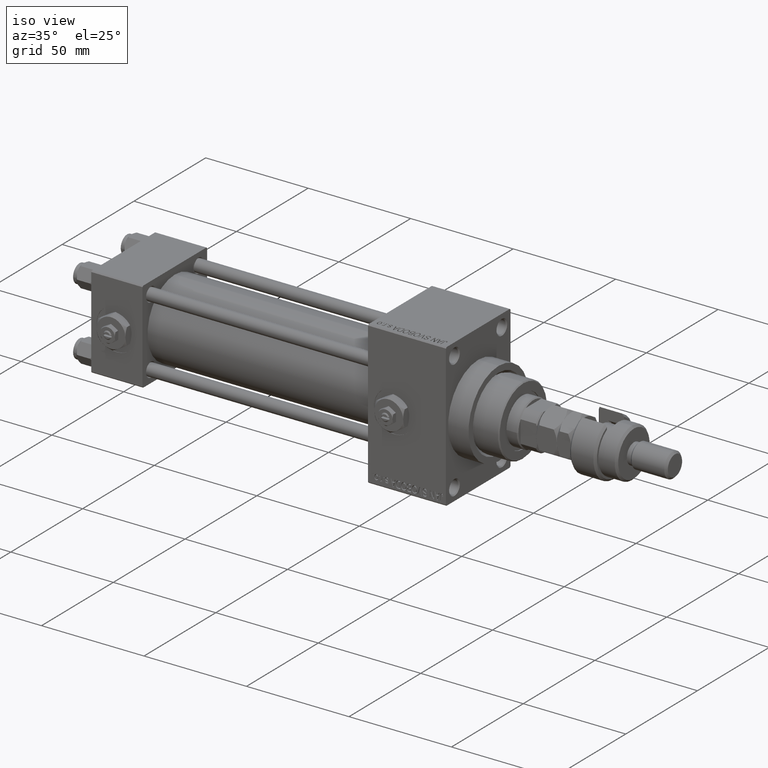
[diagram: clean part render]
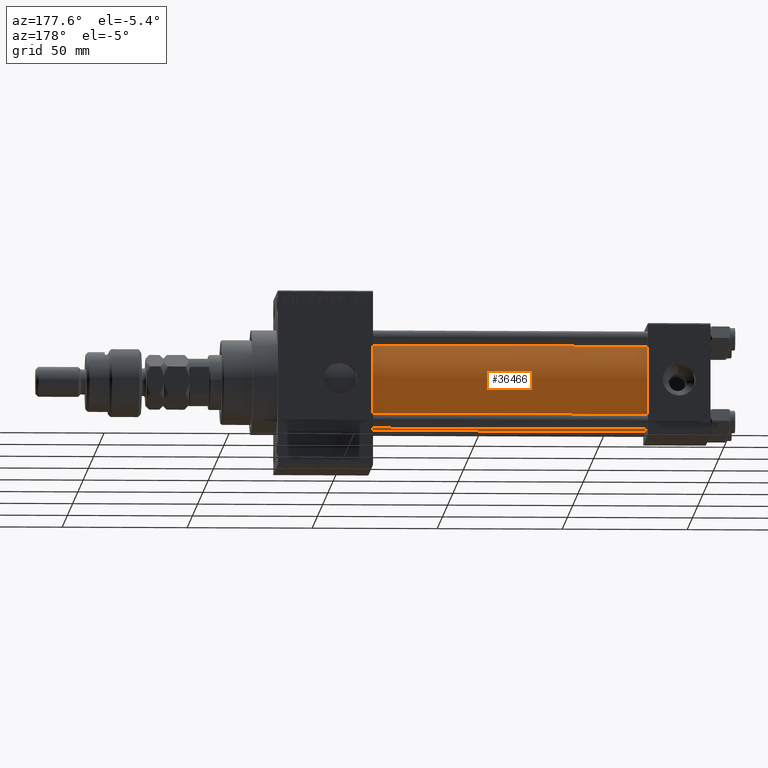
[diagram: tour spotlight — one face highlighted and labeled with its STEP entity id]
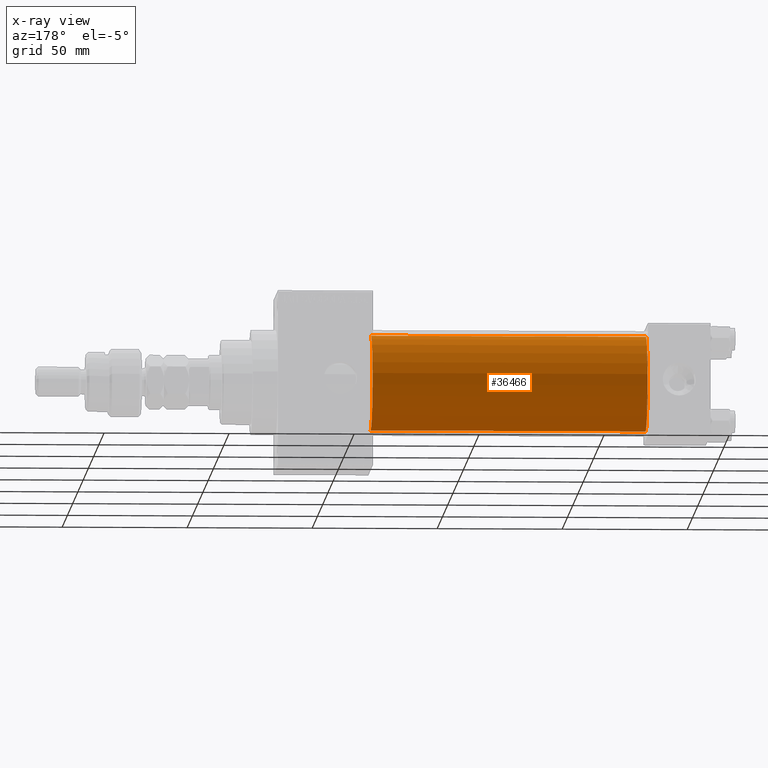
[diagram: x-ray of the same camera — body ghosted, this tour face saturated]
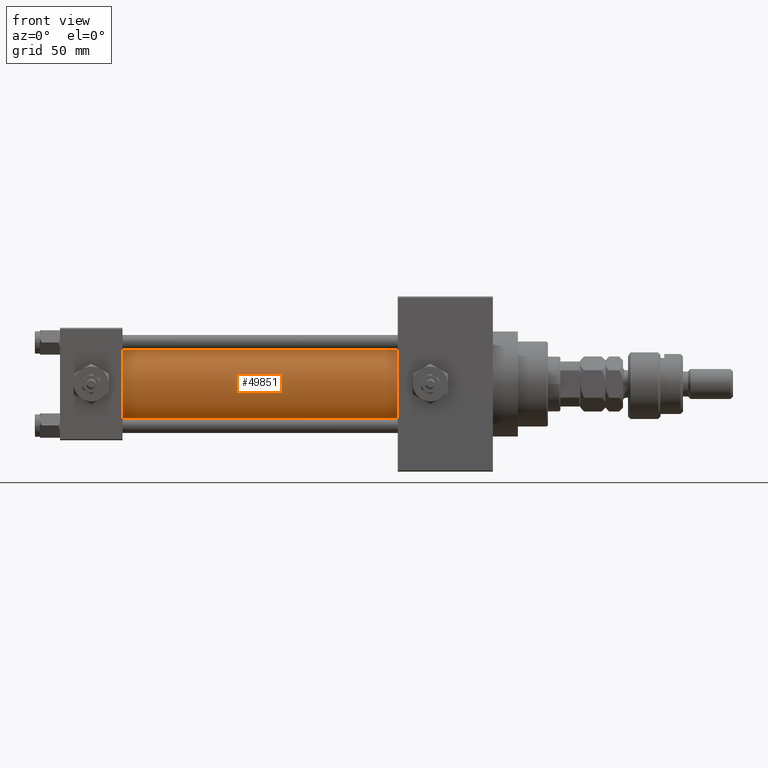
[diagram: tour spotlight — one face highlighted and labeled with its STEP entity id]
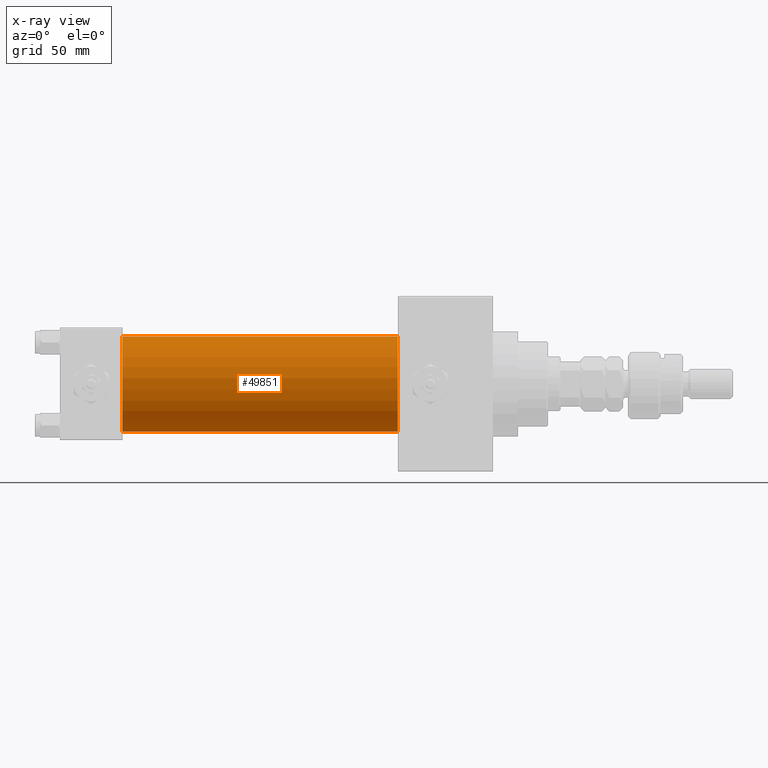
[diagram: x-ray of the same camera — body ghosted, this tour face saturated]
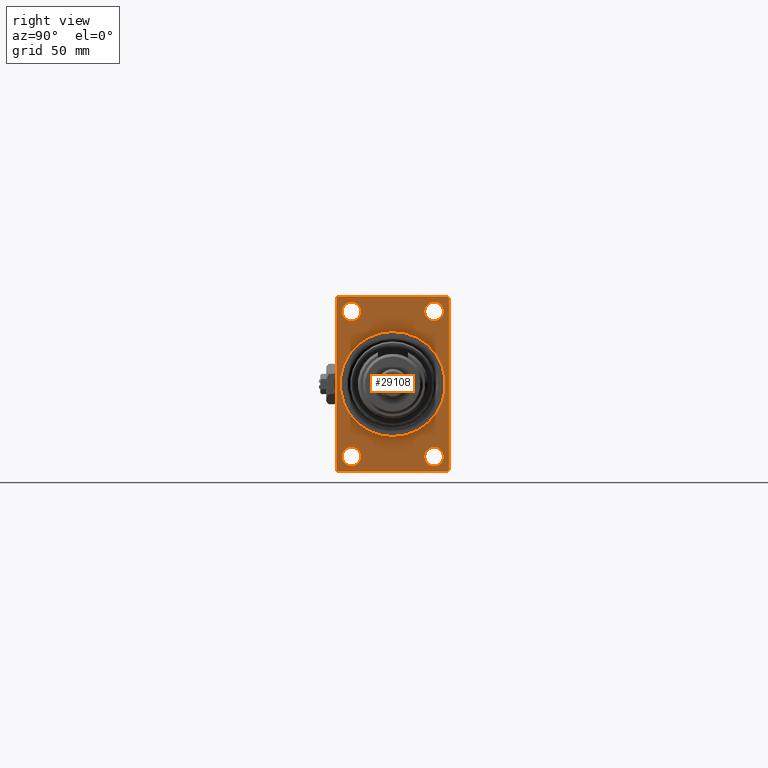
[diagram: tour spotlight — one face highlighted and labeled with its STEP entity id]
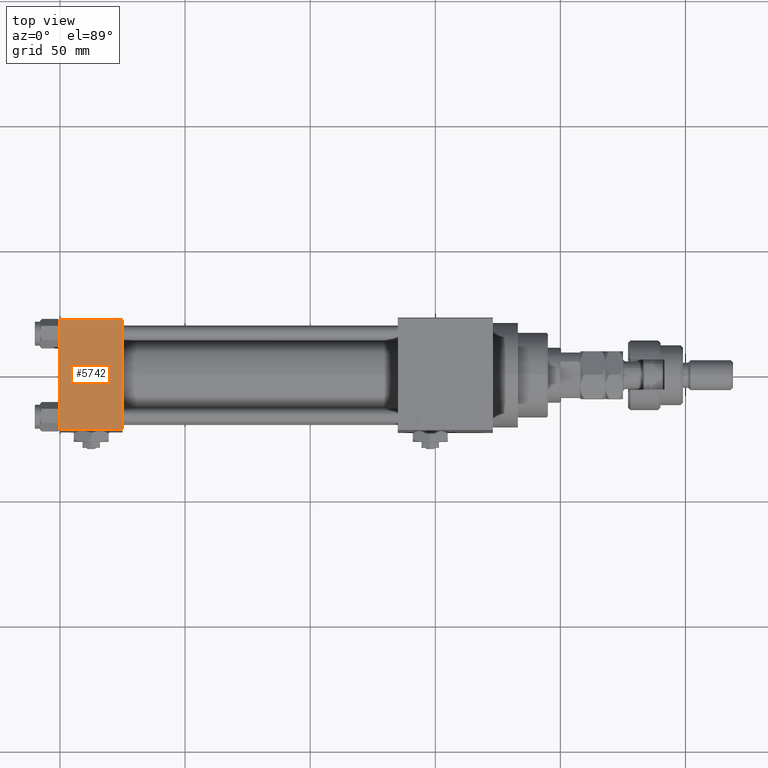
[diagram: tour spotlight — one face highlighted and labeled with its STEP entity id]
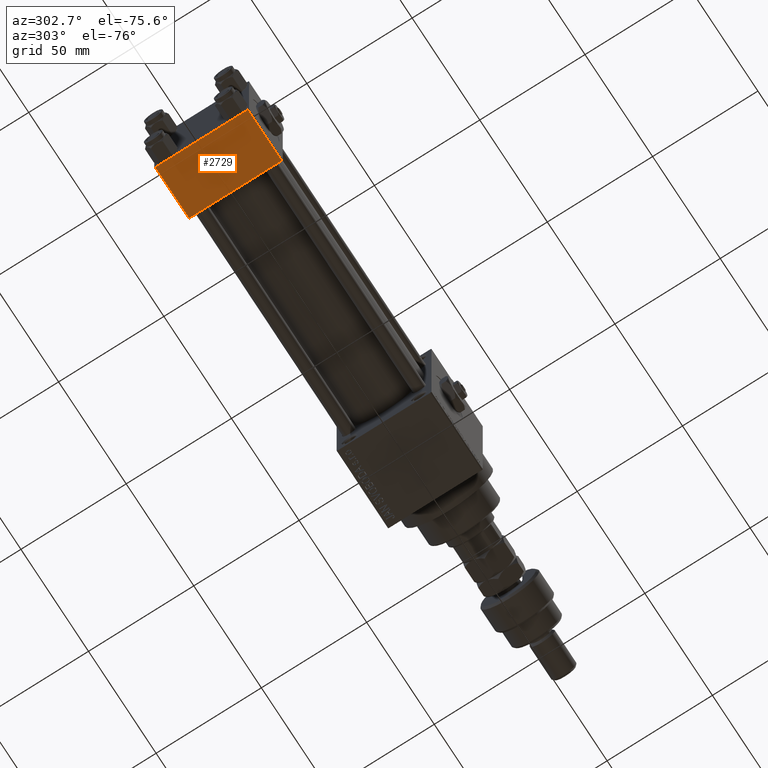
[diagram: tour spotlight — one face highlighted and labeled with its STEP entity id]
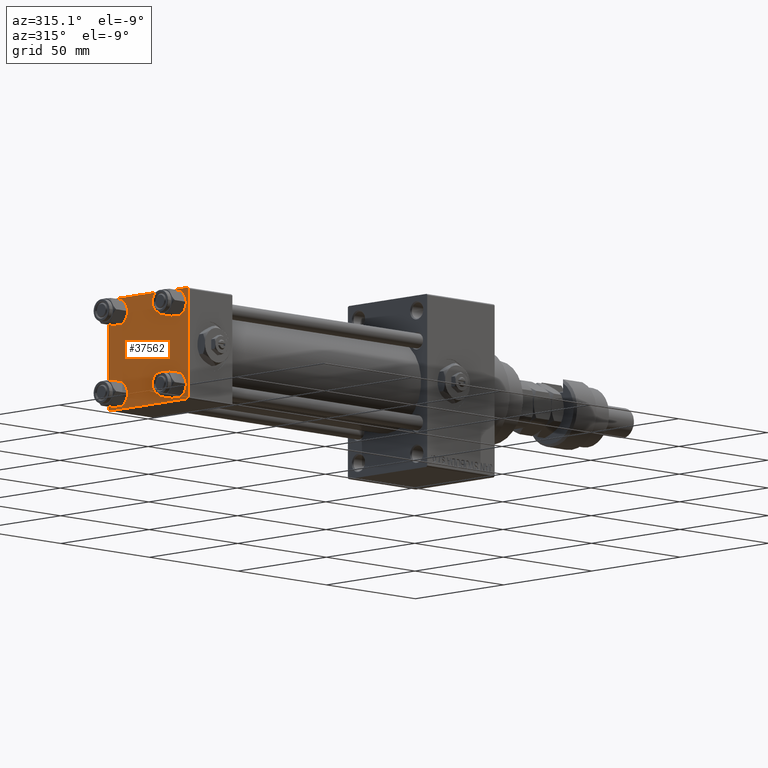
[diagram: tour spotlight — one face highlighted and labeled with its STEP entity id]
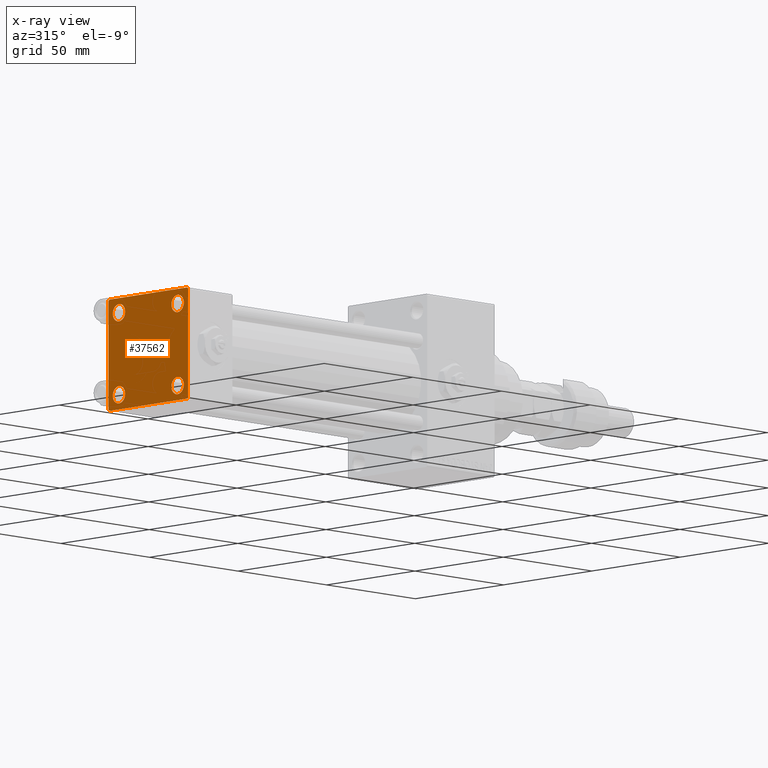
[diagram: x-ray of the same camera — body ghosted, this tour face saturated]
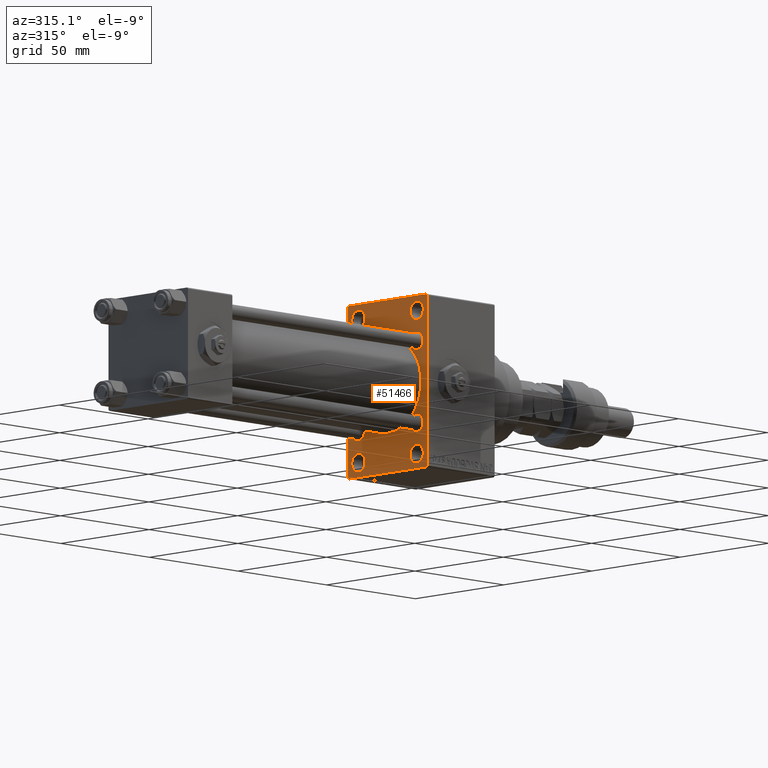
[diagram: tour spotlight — one face highlighted and labeled with its STEP entity id]
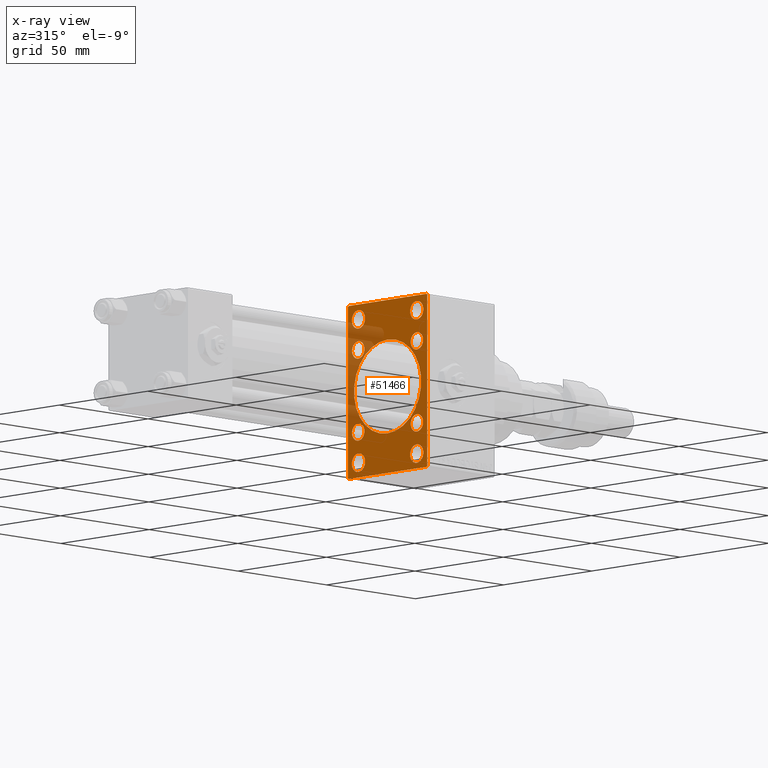
[diagram: x-ray of the same camera — body ghosted, this tour face saturated]
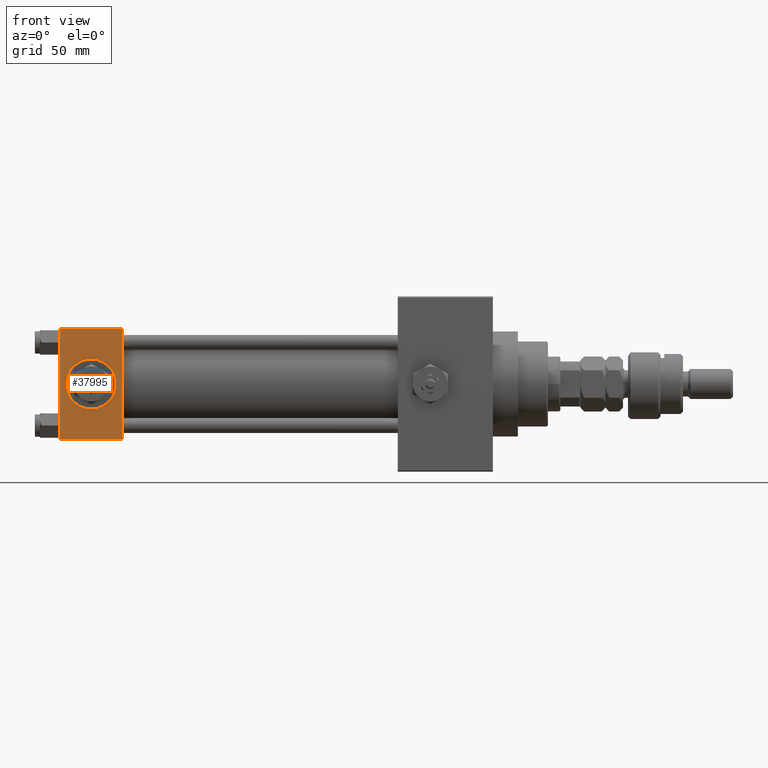
[diagram: tour spotlight — one face highlighted and labeled with its STEP entity id]
A machine part: a face-by-face anatomy tour. The part has 1289 B-rep faces; the first image is the clean iso view, then the 8 largest visible faces are spotlighted one at a time (largest first), each with its STEP entity span.

Face 1 — auxiliary view, entity #36466. An x-ray twin of the same camera follows (body ghosted, this face saturated) — the face is partly hidden behind the body. In plain terms, the highlighted cylindrical surface (partial cylindrical patch) has radius 19 mm, axis along (-1, -0, -0).
Definition (entity closure, byte-faithful):
#101 = EDGE_CURVE ( 'NONE', #19522, #45952, #25700, .T. ) ;
#1362 = AXIS2_PLACEMENT_3D ( 'NONE', #33936, #5333, #18177 ) ;
#4992 = LINE ( 'NONE', #21788, #36440 ) ;
#5333 = DIRECTION ( 'NONE',  ( 1.000000000000000000, -0.000000000000000000, 0.000000000000000000 ) ) ;
#7514 = ORIENTED_EDGE ( 'NONE', *, *, #51281, .F. ) ;
#7911 = EDGE_CURVE ( 'NONE', #10833, #45952, #33045, .T. ) ;
#10833 = VERTEX_POINT ( 'NONE', #41413 ) ;
#12198 = ORIENTED_EDGE ( 'NONE', *, *, #101, .T. ) ;
#15228 = CARTESIAN_POINT ( 'NONE',  ( 24.99999999999999289, -2.752562955852396712E-16, -19.00000000000000000 ) ) ;
#16215 = CARTESIAN_POINT ( 'NONE',  ( 24.99999999999999289, -2.602085213965210642E-15, 19.00000000000000000 ) ) ;
#16333 = DIRECTION ( 'NONE',  ( -1.000000000000000000, -0.000000000000000000, -0.000000000000000000 ) ) ;
#16581 = CARTESIAN_POINT ( 'NONE',  ( 135.0000000000000000, -2.752562955852396712E-16, -19.00000000000000000 ) ) ;
#18177 = DIRECTION ( 'NONE',  ( 0.000000000000000000, 0.000000000000000000, 1.000000000000000000 ) ) ;
#19522 = VERTEX_POINT ( 'NONE', #15228 ) ;
#19733 = DIRECTION ( 'NONE',  ( 0.000000000000000000, 0.000000000000000000, 1.000000000000000000 ) ) ;
#20253 = FACE_OUTER_BOUND ( 'NONE', #43651, .T. ) ;
#20508 = CYLINDRICAL_SURFACE ( 'NONE', #36582, 19.00000000000000000 ) ;
#21788 = CARTESIAN_POINT ( 'NONE',  ( 135.0000000000000000, -2.752562955852396712E-16, -19.00000000000000000 ) ) ;
#23485 = DIRECTION ( 'NONE',  ( 0.000000000000000000, 0.000000000000000000, -1.000000000000000000 ) ) ;
#25396 = CARTESIAN_POINT ( 'NONE',  ( 135.0000000000000000, -2.602085213965210642E-15, 19.00000000000000000 ) ) ;
#25700 = CIRCLE ( 'NONE', #1362, 19.00000000000000000 ) ;
#32978 = EDGE_CURVE ( 'NONE', #50886, #19522, #4992, .T. ) ;
#33045 = LINE ( 'NONE', #25396, #34390 ) ;
#33936 = CARTESIAN_POINT ( 'NONE',  ( 24.99999999999999289, -2.602085213965210642E-15, 0.000000000000000000 ) ) ;
#34390 = VECTOR ( 'NONE', #49550, 1000.000000000000000 ) ;
#36267 = CARTESIAN_POINT ( 'NONE',  ( 135.0000000000000000, -2.602085213965210642E-15, 0.000000000000000000 ) ) ;
#36429 = AXIS2_PLACEMENT_3D ( 'NONE', #37432, #47644, #23485 ) ;
#36440 = VECTOR ( 'NONE', #37806, 1000.000000000000000 ) ;
#36466 = ADVANCED_FACE ( 'NONE', ( #20253 ), #20508, .T. ) ;
#36582 = AXIS2_PLACEMENT_3D ( 'NONE', #36267, #16333, #19733 ) ;
#37242 = CIRCLE ( 'NONE', #36429, 19.00000000000000000 ) ;
#37388 = ORIENTED_EDGE ( 'NONE', *, *, #32978, .T. ) ;
#37432 = CARTESIAN_POINT ( 'NONE',  ( 135.0000000000000000, -2.602085213965210642E-15, 0.000000000000000000 ) ) ;
#37806 = DIRECTION ( 'NONE',  ( -1.000000000000000000, -0.000000000000000000, -0.000000000000000000 ) ) ;
#41413 = CARTESIAN_POINT ( 'NONE',  ( 135.0000000000000000, -2.602085213965210642E-15, 19.00000000000000000 ) ) ;
#43651 = EDGE_LOOP ( 'NONE', ( #7514, #37388, #12198, #46873 ) ) ;
#45952 = VERTEX_POINT ( 'NONE', #16215 ) ;
#46873 = ORIENTED_EDGE ( 'NONE', *, *, #7911, .F. ) ;
#47644 = DIRECTION ( 'NONE',  ( 1.000000000000000000, 0.000000000000000000, 0.000000000000000000 ) ) ;
#49550 = DIRECTION ( 'NONE',  ( -1.000000000000000000, -0.000000000000000000, -0.000000000000000000 ) ) ;
#50886 = VERTEX_POINT ( 'NONE', #16581 ) ;
#51281 = EDGE_CURVE ( 'NONE', #50886, #10833, #37242, .T. ) ;

Face 2 — front view, entity #49851. An x-ray twin of the same camera follows (body ghosted, this face saturated) — the face is partly hidden behind the body. In plain terms, the highlighted cylindrical surface (partial cylindrical patch) has radius 19 mm, axis along (-1, -0, -0).
Definition (entity closure, byte-faithful):
#299 = CIRCLE ( 'NONE', #333, 19.00000000000000000 ) ;
#333 = AXIS2_PLACEMENT_3D ( 'NONE', #12572, #29635, #5206 ) ;
#1868 = ORIENTED_EDGE ( 'NONE', *, *, #26436, .T. ) ;
#2787 = DIRECTION ( 'NONE',  ( 1.000000000000000000, -0.000000000000000000, 0.000000000000000000 ) ) ;
#4992 = LINE ( 'NONE', #21788, #36440 ) ;
#5206 = DIRECTION ( 'NONE',  ( 0.000000000000000000, 0.000000000000000000, -1.000000000000000000 ) ) ;
#7911 = EDGE_CURVE ( 'NONE', #10833, #45952, #33045, .T. ) ;
#10833 = VERTEX_POINT ( 'NONE', #41413 ) ;
#10938 = ORIENTED_EDGE ( 'NONE', *, *, #32978, .F. ) ;
#12572 = CARTESIAN_POINT ( 'NONE',  ( 135.0000000000000000, -2.602085213965210642E-15, 0.000000000000000000 ) ) ;
#15228 = CARTESIAN_POINT ( 'NONE',  ( 24.99999999999999289, -2.752562955852396712E-16, -19.00000000000000000 ) ) ;
#16215 = CARTESIAN_POINT ( 'NONE',  ( 24.99999999999999289, -2.602085213965210642E-15, 19.00000000000000000 ) ) ;
#16581 = CARTESIAN_POINT ( 'NONE',  ( 135.0000000000000000, -2.752562955852396712E-16, -19.00000000000000000 ) ) ;
#19507 = CIRCLE ( 'NONE', #48853, 19.00000000000000000 ) ;
#19522 = VERTEX_POINT ( 'NONE', #15228 ) ;
#20422 = AXIS2_PLACEMENT_3D ( 'NONE', #29140, #21252, #37521 ) ;
#21252 = DIRECTION ( 'NONE',  ( -1.000000000000000000, -0.000000000000000000, -0.000000000000000000 ) ) ;
#21788 = CARTESIAN_POINT ( 'NONE',  ( 135.0000000000000000, -2.752562955852396712E-16, -19.00000000000000000 ) ) ;
#25396 = CARTESIAN_POINT ( 'NONE',  ( 135.0000000000000000, -2.602085213965210642E-15, 19.00000000000000000 ) ) ;
#26436 = EDGE_CURVE ( 'NONE', #45952, #19522, #19507, .T. ) ;
#29010 = ORIENTED_EDGE ( 'NONE', *, *, #31202, .F. ) ;
#29140 = CARTESIAN_POINT ( 'NONE',  ( 135.0000000000000000, -2.602085213965210642E-15, 0.000000000000000000 ) ) ;
#29635 = DIRECTION ( 'NONE',  ( 1.000000000000000000, 0.000000000000000000, 0.000000000000000000 ) ) ;
#30898 = DIRECTION ( 'NONE',  ( 0.000000000000000000, 0.000000000000000000, 1.000000000000000000 ) ) ;
#31177 = EDGE_LOOP ( 'NONE', ( #10938, #29010, #40331, #1868 ) ) ;
#31202 = EDGE_CURVE ( 'NONE', #10833, #50886, #299, .T. ) ;
#32978 = EDGE_CURVE ( 'NONE', #50886, #19522, #4992, .T. ) ;
#33045 = LINE ( 'NONE', #25396, #34390 ) ;
#34390 = VECTOR ( 'NONE', #49550, 1000.000000000000000 ) ;
#36440 = VECTOR ( 'NONE', #37806, 1000.000000000000000 ) ;
#37521 = DIRECTION ( 'NONE',  ( 0.000000000000000000, 0.000000000000000000, 1.000000000000000000 ) ) ;
#37806 = DIRECTION ( 'NONE',  ( -1.000000000000000000, -0.000000000000000000, -0.000000000000000000 ) ) ;
#40331 = ORIENTED_EDGE ( 'NONE', *, *, #7911, .T. ) ;
#41413 = CARTESIAN_POINT ( 'NONE',  ( 135.0000000000000000, -2.602085213965210642E-15, 19.00000000000000000 ) ) ;
#45155 = CYLINDRICAL_SURFACE ( 'NONE', #20422, 19.00000000000000000 ) ;
#45952 = VERTEX_POINT ( 'NONE', #16215 ) ;
#48853 = AXIS2_PLACEMENT_3D ( 'NONE', #50841, #2787, #30898 ) ;
#49550 = DIRECTION ( 'NONE',  ( -1.000000000000000000, -0.000000000000000000, -0.000000000000000000 ) ) ;
#49851 = ADVANCED_FACE ( 'NONE', ( #51089 ), #45155, .T. ) ;
#50841 = CARTESIAN_POINT ( 'NONE',  ( 24.99999999999999289, -2.602085213965210642E-15, 0.000000000000000000 ) ) ;
#50886 = VERTEX_POINT ( 'NONE', #16581 ) ;
#51089 = FACE_OUTER_BOUND ( 'NONE', #31177, .T. ) ;

Face 3 — right view, entity #29108. In plain terms, the highlighted planar face has unit normal (-1, 0, 0).
Definition (entity closure, byte-faithful):
#62 = AXIS2_PLACEMENT_3D ( 'NONE', #46394, #10401, #21456 ) ;
#786 = CARTESIAN_POINT ( 'NONE',  ( 173.0000000000000284, -16.50000000000000000, 29.00000000000000711 ) ) ;
#1124 = EDGE_LOOP ( 'NONE', ( #43875, #32864 ) ) ;
#2434 = DIRECTION ( 'NONE',  ( 0.000000000000000000, 0.7071067811865474617, -0.7071067811865474617 ) ) ;
#2488 = EDGE_LOOP ( 'NONE', ( #17401, #11230 ) ) ;
#2597 = CARTESIAN_POINT ( 'NONE',  ( 173.0000000000000284, 0.000000000000000000, 0.000000000000000000 ) ) ;
#3075 = VERTEX_POINT ( 'NONE', #13223 ) ;
#3113 = LINE ( 'NONE', #46458, #25989 ) ;
#3473 = CIRCLE ( 'NONE', #21089, 3.750000000000166533 ) ;
#3851 = DIRECTION ( 'NONE',  ( -0.000000000000000000, -0.7071067811865279218, -0.7071067811865671127 ) ) ;
#3970 = CARTESIAN_POINT ( 'NONE',  ( 173.0000000000000284, 16.50000000000000000, -32.75000000000017053 ) ) ;
#4397 = AXIS2_PLACEMENT_3D ( 'NONE', #42871, #42346, #18181 ) ;
#4808 = CARTESIAN_POINT ( 'NONE',  ( 173.0000000000000284, 16.50000000000000000, -25.24999999999982592 ) ) ;
#5196 = CARTESIAN_POINT ( 'NONE',  ( 173.0000000000000284, 16.50000000000000000, -28.99999999999999289 ) ) ;
#5853 = CARTESIAN_POINT ( 'NONE',  ( 173.0000000000000284, 0.000000000000000000, 21.00000000000000000 ) ) ;
#5950 = EDGE_LOOP ( 'NONE', ( #41071, #47603 ) ) ;
#6180 = VERTEX_POINT ( 'NONE', #45418 ) ;
#6333 = CIRCLE ( 'NONE', #18061, 3.750000000000166533 ) ;
#6367 = FACE_BOUND ( 'NONE', #5950, .T. ) ;
#6759 = ORIENTED_EDGE ( 'NONE', *, *, #16558, .T. ) ;
#7131 = ORIENTED_EDGE ( 'NONE', *, *, #14890, .F. ) ;
#7322 = DIRECTION ( 'NONE',  ( 0.000000000000000000, 0.000000000000000000, -1.000000000000000000 ) ) ;
#7508 = CIRCLE ( 'NONE', #42706, 21.00000000000000000 ) ;
#7526 = LINE ( 'NONE', #39560, #15391 ) ;
#7646 = EDGE_CURVE ( 'NONE', #50146, #40578, #3113, .T. ) ;
#7720 = ORIENTED_EDGE ( 'NONE', *, *, #45662, .T. ) ;
#7875 = VERTEX_POINT ( 'NONE', #36453 ) ;
#7925 = VERTEX_POINT ( 'NONE', #20942 ) ;
#8599 = EDGE_CURVE ( 'NONE', #11123, #6180, #38629, .T. ) ;
#8942 = EDGE_CURVE ( 'NONE', #6180, #11123, #25197, .T. ) ;
#8991 = DIRECTION ( 'NONE',  ( -1.000000000000000000, -0.000000000000000000, -0.000000000000000000 ) ) ;
#9364 = CARTESIAN_POINT ( 'NONE',  ( 173.0000000000000284, 22.49999999999999645, -35.00000000000000000 ) ) ;
#10037 = CARTESIAN_POINT ( 'NONE',  ( 173.0000000000000284, 16.50000000000000000, -28.99999999999999289 ) ) ;
#10098 = CARTESIAN_POINT ( 'NONE',  ( 173.0000000000000284, 22.49999999999999645, 35.00000000000000000 ) ) ;
#10401 = DIRECTION ( 'NONE',  ( 1.000000000000000000, 0.000000000000000000, 0.000000000000000000 ) ) ;
#10970 = CIRCLE ( 'NONE', #26068, 3.750000000000166533 ) ;
#11123 = VERTEX_POINT ( 'NONE', #29281 ) ;
#11230 = ORIENTED_EDGE ( 'NONE', *, *, #8599, .T. ) ;
#11976 = CARTESIAN_POINT ( 'NONE',  ( 173.0000000000000284, -16.50000000000000000, 25.24999999999984368 ) ) ;
#12249 = CARTESIAN_POINT ( 'NONE',  ( 173.0000000000000284, -22.50000000000000355, 34.50000000000000000 ) ) ;
#13076 = CARTESIAN_POINT ( 'NONE',  ( 173.0000000000000284, 22.49999999999999645, 35.00000000000000000 ) ) ;
#13091 = ORIENTED_EDGE ( 'NONE', *, *, #13252, .T. ) ;
#13223 = CARTESIAN_POINT ( 'NONE',  ( 173.0000000000000284, -16.50000000000000000, 32.75000000000017764 ) ) ;
#13252 = EDGE_CURVE ( 'NONE', #40578, #39122, #30024, .T. ) ;
#13487 = CARTESIAN_POINT ( 'NONE',  ( 173.0000000000000284, 22.49999999999999645, -34.50000000000000000 ) ) ;
#13910 = DIRECTION ( 'NONE',  ( -1.000000000000000000, -0.000000000000000000, -0.000000000000000000 ) ) ;
#14156 = CARTESIAN_POINT ( 'NONE',  ( 173.0000000000000284, -22.50000000000000355, -34.50000000000000000 ) ) ;
#14890 = EDGE_CURVE ( 'NONE', #41147, #39122, #17772, .T. ) ;
#15219 = DIRECTION ( 'NONE',  ( 0.000000000000000000, 0.000000000000000000, 1.000000000000000000 ) ) ;
#15391 = VECTOR ( 'NONE', #27738, 1000.000000000000114 ) ;
#15613 = VERTEX_POINT ( 'NONE', #4808 ) ;
#16558 = EDGE_CURVE ( 'NONE', #7925, #50146, #44560, .T. ) ;
#16819 = DIRECTION ( 'NONE',  ( -1.000000000000000000, -0.000000000000000000, -0.000000000000000000 ) ) ;
#16876 = DIRECTION ( 'NONE',  ( 0.000000000000000000, 0.000000000000000000, 1.000000000000000000 ) ) ;
#17261 = DIRECTION ( 'NONE',  ( 0.000000000000000000, -1.000000000000000000, 0.000000000000000000 ) ) ;
#17401 = ORIENTED_EDGE ( 'NONE', *, *, #8942, .T. ) ;
#17772 = LINE ( 'NONE', #9364, #51932 ) ;
#17809 = EDGE_LOOP ( 'NONE', ( #7720, #27949 ) ) ;
#18061 = AXIS2_PLACEMENT_3D ( 'NONE', #786, #16819, #39289 ) ;
#18103 = DIRECTION ( 'NONE',  ( 1.000000000000000000, 0.000000000000000000, 0.000000000000000000 ) ) ;
#18181 = DIRECTION ( 'NONE',  ( -0.000000000000000000, 0.000000000000000000, 1.000000000000000000 ) ) ;
#18402 = ORIENTED_EDGE ( 'NONE', *, *, #24156, .T. ) ;
#18474 = EDGE_LOOP ( 'NONE', ( #51992, #27631 ) ) ;
#18628 = ORIENTED_EDGE ( 'NONE', *, *, #30512, .T. ) ;
#18745 = EDGE_CURVE ( 'NONE', #25567, #31981, #7508, .T. ) ;
#19825 = EDGE_CURVE ( 'NONE', #51360, #7925, #49061, .T. ) ;
#20107 = CARTESIAN_POINT ( 'NONE',  ( 173.0000000000000284, 22.00000000000002132, -35.00000000000000000 ) ) ;
#20178 = EDGE_CURVE ( 'NONE', #7875, #33302, #37948, .T. ) ;
#20942 = CARTESIAN_POINT ( 'NONE',  ( 173.0000000000000284, -22.00000000000001776, 35.00000000000000000 ) ) ;
#21008 = AXIS2_PLACEMENT_3D ( 'NONE', #49559, #26179, #42209 ) ;
#21089 = AXIS2_PLACEMENT_3D ( 'NONE', #37239, #41431, #28592 ) ;
#21160 = ORIENTED_EDGE ( 'NONE', *, *, #19825, .T. ) ;
#21456 = DIRECTION ( 'NONE',  ( 0.000000000000000000, 0.000000000000000000, -1.000000000000000000 ) ) ;
#22194 = DIRECTION ( 'NONE',  ( 0.000000000000000000, 0.000000000000000000, -1.000000000000000000 ) ) ;
#23729 = AXIS2_PLACEMENT_3D ( 'NONE', #5196, #32289, #45120 ) ;
#23776 = AXIS2_PLACEMENT_3D ( 'NONE', #28713, #8991, #36832 ) ;
#24156 = EDGE_CURVE ( 'NONE', #41147, #33302, #49461, .T. ) ;
#25032 = DIRECTION ( 'NONE',  ( -1.000000000000000000, -0.000000000000000000, -0.000000000000000000 ) ) ;
#25197 = CIRCLE ( 'NONE', #21008, 3.750000000000169642 ) ;
#25326 = CIRCLE ( 'NONE', #23776, 3.750000000000166533 ) ;
#25567 = VERTEX_POINT ( 'NONE', #41471 ) ;
#25569 = DIRECTION ( 'NONE',  ( -0.000000000000000000, 0.7071067811865279218, 0.7071067811865671127 ) ) ;
#25989 = VECTOR ( 'NONE', #7322, 1000.000000000000000 ) ;
#26068 = AXIS2_PLACEMENT_3D ( 'NONE', #10037, #25032, #37126 ) ;
#26179 = DIRECTION ( 'NONE',  ( -1.000000000000000000, -0.000000000000000000, -0.000000000000000000 ) ) ;
#26870 = CARTESIAN_POINT ( 'NONE',  ( 173.0000000000000284, -22.50000000000000355, 34.50000000000000000 ) ) ;
#26899 = AXIS2_PLACEMENT_3D ( 'NONE', #33867, #13910, #15219 ) ;
#26907 = CARTESIAN_POINT ( 'NONE',  ( 173.0000000000000284, 21.99999999999999645, 35.00000000000000000 ) ) ;
#27631 = ORIENTED_EDGE ( 'NONE', *, *, #41600, .T. ) ;
#27738 = DIRECTION ( 'NONE',  ( 0.000000000000000000, -0.7071067811865474617, 0.7071067811865474617 ) ) ;
#27949 = ORIENTED_EDGE ( 'NONE', *, *, #43951, .T. ) ;
#27997 = EDGE_CURVE ( 'NONE', #3075, #35849, #25326, .T. ) ;
#28592 = DIRECTION ( 'NONE',  ( 0.000000000000000000, 0.000000000000000000, 1.000000000000000000 ) ) ;
#28713 = CARTESIAN_POINT ( 'NONE',  ( 173.0000000000000284, -16.50000000000000000, 29.00000000000000711 ) ) ;
#28774 = CARTESIAN_POINT ( 'NONE',  ( 173.0000000000000284, -16.50000000000000000, -25.24999999999982592 ) ) ;
#29108 = ADVANCED_FACE ( 'NONE', ( #6367, #34976, #30270, #34452, #34192, #50988 ), #39177, .F. ) ;
#29281 = CARTESIAN_POINT ( 'NONE',  ( 173.0000000000000284, 16.50000000000000000, 32.75000000000017764 ) ) ;
#29456 = VECTOR ( 'NONE', #2434, 1000.000000000000114 ) ;
#30024 = LINE ( 'NONE', #38156, #29456 ) ;
#30114 = EDGE_CURVE ( 'NONE', #50921, #15613, #48075, .T. ) ;
#30270 = FACE_BOUND ( 'NONE', #18474, .T. ) ;
#30512 = EDGE_CURVE ( 'NONE', #7875, #51360, #7526, .T. ) ;
#31981 = VERTEX_POINT ( 'NONE', #5853 ) ;
#32289 = DIRECTION ( 'NONE',  ( -1.000000000000000000, -0.000000000000000000, -0.000000000000000000 ) ) ;
#32864 = ORIENTED_EDGE ( 'NONE', *, *, #18745, .F. ) ;
#33302 = VERTEX_POINT ( 'NONE', #37941 ) ;
#33470 = VERTEX_POINT ( 'NONE', #40537 ) ;
#33867 = CARTESIAN_POINT ( 'NONE',  ( 173.0000000000000284, 16.50000000000000000, 29.00000000000000355 ) ) ;
#34192 = FACE_BOUND ( 'NONE', #1124, .T. ) ;
#34368 = DIRECTION ( 'NONE',  ( 0.000000000000000000, 0.000000000000000000, -1.000000000000000000 ) ) ;
#34452 = FACE_BOUND ( 'NONE', #2488, .T. ) ;
#34976 = FACE_BOUND ( 'NONE', #17809, .T. ) ;
#35729 = EDGE_CURVE ( 'NONE', #35849, #3075, #6333, .T. ) ;
#35849 = VERTEX_POINT ( 'NONE', #11976 ) ;
#36240 = CIRCLE ( 'NONE', #37910, 3.750000000000166533 ) ;
#36453 = CARTESIAN_POINT ( 'NONE',  ( 173.0000000000000284, 22.49999999999999645, 34.50000000000000000 ) ) ;
#36832 = DIRECTION ( 'NONE',  ( 0.000000000000000000, 0.000000000000000000, 1.000000000000000000 ) ) ;
#37126 = DIRECTION ( 'NONE',  ( 0.000000000000000000, 0.000000000000000000, 1.000000000000000000 ) ) ;
#37239 = CARTESIAN_POINT ( 'NONE',  ( 173.0000000000000284, -16.50000000000000000, -28.99999999999999289 ) ) ;
#37418 = EDGE_LOOP ( 'NONE', ( #42061, #13091, #7131, #18402, #44491, #18628, #21160, #6759 ) ) ;
#37714 = VECTOR ( 'NONE', #22194, 1000.000000000000000 ) ;
#37910 = AXIS2_PLACEMENT_3D ( 'NONE', #48143, #44717, #16876 ) ;
#37941 = CARTESIAN_POINT ( 'NONE',  ( 173.0000000000000284, 22.49999999999999645, -34.50000000000000000 ) ) ;
#37948 = LINE ( 'NONE', #10098, #37714 ) ;
#38156 = CARTESIAN_POINT ( 'NONE',  ( 173.0000000000000284, -22.00000000000000355, -35.00000000000000000 ) ) ;
#38629 = CIRCLE ( 'NONE', #26899, 3.750000000000169642 ) ;
#38951 = CARTESIAN_POINT ( 'NONE',  ( 173.0000000000000284, -21.99999999999998934, -35.00000000000000000 ) ) ;
#39122 = VERTEX_POINT ( 'NONE', #38951 ) ;
#39177 = PLANE ( 'NONE',  #4397 ) ;
#39289 = DIRECTION ( 'NONE',  ( 0.000000000000000000, 0.000000000000000000, 1.000000000000000000 ) ) ;
#39560 = CARTESIAN_POINT ( 'NONE',  ( 173.0000000000000284, 21.99999999999999645, 35.00000000000000000 ) ) ;
#40537 = CARTESIAN_POINT ( 'NONE',  ( 173.0000000000000284, -16.50000000000000000, -32.75000000000017053 ) ) ;
#40578 = VERTEX_POINT ( 'NONE', #14156 ) ;
#40936 = EDGE_CURVE ( 'NONE', #31981, #25567, #49536, .T. ) ;
#41071 = ORIENTED_EDGE ( 'NONE', *, *, #35729, .T. ) ;
#41116 = VERTEX_POINT ( 'NONE', #28774 ) ;
#41147 = VERTEX_POINT ( 'NONE', #20107 ) ;
#41431 = DIRECTION ( 'NONE',  ( -1.000000000000000000, -0.000000000000000000, -0.000000000000000000 ) ) ;
#41471 = CARTESIAN_POINT ( 'NONE',  ( 173.0000000000000284, 2.571758278209441661E-15, -21.00000000000000000 ) ) ;
#41600 = EDGE_CURVE ( 'NONE', #15613, #50921, #10970, .T. ) ;
#42061 = ORIENTED_EDGE ( 'NONE', *, *, #7646, .T. ) ;
#42209 = DIRECTION ( 'NONE',  ( 0.000000000000000000, 0.000000000000000000, 1.000000000000000000 ) ) ;
#42346 = DIRECTION ( 'NONE',  ( -1.000000000000000000, 0.000000000000000000, -0.000000000000000000 ) ) ;
#42472 = DIRECTION ( 'NONE',  ( 0.000000000000000000, -1.000000000000000000, 0.000000000000000000 ) ) ;
#42706 = AXIS2_PLACEMENT_3D ( 'NONE', #2597, #18103, #34368 ) ;
#42748 = VECTOR ( 'NONE', #42472, 1000.000000000000000 ) ;
#42871 = CARTESIAN_POINT ( 'NONE',  ( 173.0000000000000284, 0.000000000000000000, 0.000000000000000000 ) ) ;
#43500 = VECTOR ( 'NONE', #3851, 1000.000000000000000 ) ;
#43875 = ORIENTED_EDGE ( 'NONE', *, *, #40936, .F. ) ;
#43951 = EDGE_CURVE ( 'NONE', #41116, #33470, #36240, .T. ) ;
#44491 = ORIENTED_EDGE ( 'NONE', *, *, #20178, .F. ) ;
#44560 = LINE ( 'NONE', #12249, #43500 ) ;
#44717 = DIRECTION ( 'NONE',  ( -1.000000000000000000, -0.000000000000000000, -0.000000000000000000 ) ) ;
#45120 = DIRECTION ( 'NONE',  ( 0.000000000000000000, 0.000000000000000000, 1.000000000000000000 ) ) ;
#45418 = CARTESIAN_POINT ( 'NONE',  ( 173.0000000000000284, 16.50000000000000000, 25.24999999999983658 ) ) ;
#45662 = EDGE_CURVE ( 'NONE', #33470, #41116, #3473, .T. ) ;
#46394 = CARTESIAN_POINT ( 'NONE',  ( 173.0000000000000284, 0.000000000000000000, 0.000000000000000000 ) ) ;
#46458 = CARTESIAN_POINT ( 'NONE',  ( 173.0000000000000284, -22.50000000000000355, 35.00000000000000000 ) ) ;
#47603 = ORIENTED_EDGE ( 'NONE', *, *, #27997, .T. ) ;
#48075 = CIRCLE ( 'NONE', #23729, 3.750000000000166533 ) ;
#48143 = CARTESIAN_POINT ( 'NONE',  ( 173.0000000000000284, -16.50000000000000000, -28.99999999999999289 ) ) ;
#49061 = LINE ( 'NONE', #13076, #42748 ) ;
#49461 = LINE ( 'NONE', #13487, #50444 ) ;
#49536 = CIRCLE ( 'NONE', #62, 21.00000000000000000 ) ;
#49559 = CARTESIAN_POINT ( 'NONE',  ( 173.0000000000000284, 16.50000000000000000, 29.00000000000000355 ) ) ;
#50146 = VERTEX_POINT ( 'NONE', #26870 ) ;
#50444 = VECTOR ( 'NONE', #25569, 1000.000000000000000 ) ;
#50921 = VERTEX_POINT ( 'NONE', #3970 ) ;
#50988 = FACE_OUTER_BOUND ( 'NONE', #37418, .T. ) ;
#51360 = VERTEX_POINT ( 'NONE', #26907 ) ;
#51932 = VECTOR ( 'NONE', #17261, 1000.000000000000000 ) ;
#51992 = ORIENTED_EDGE ( 'NONE', *, *, #30114, .T. ) ;

Face 4 — top view, entity #5742. In plain terms, the highlighted planar face has unit normal (0, 0, -1).
Definition (entity closure, byte-faithful):
#357 = EDGE_LOOP ( 'NONE', ( #22169, #21591, #11570, #15007 ) ) ;
#1469 = EDGE_CURVE ( 'NONE', #25393, #31443, #44878, .T. ) ;
#1689 = VERTEX_POINT ( 'NONE', #29125 ) ;
#2893 = CARTESIAN_POINT ( 'NONE',  ( 0.000000000000000000, -21.99999999999997868, 22.50000000000000000 ) ) ;
#3509 = LINE ( 'NONE', #11392, #12745 ) ;
#4818 = VECTOR ( 'NONE', #40155, 1000.000000000000000 ) ;
#5742 = ADVANCED_FACE ( 'NONE', ( #28302 ), #32771, .F. ) ;
#6351 = EDGE_CURVE ( 'NONE', #25393, #1689, #40379, .T. ) ;
#9903 = CARTESIAN_POINT ( 'NONE',  ( 0.000000000000000000, 22.50000000000000000, 22.50000000000000355 ) ) ;
#10265 = CARTESIAN_POINT ( 'NONE',  ( 25.00000000000000000, 21.99999999999999289, 22.50000000000000355 ) ) ;
#11392 = CARTESIAN_POINT ( 'NONE',  ( 25.00000000000000000, -21.99999999999999289, 22.50000000000000000 ) ) ;
#11570 = ORIENTED_EDGE ( 'NONE', *, *, #1469, .F. ) ;
#12317 = CARTESIAN_POINT ( 'NONE',  ( 25.00000000000000000, 22.50000000000000000, 22.50000000000000355 ) ) ;
#12745 = VECTOR ( 'NONE', #48158, 1000.000000000000000 ) ;
#13046 = DIRECTION ( 'NONE',  ( 0.000000000000000000, 7.709882115452476934E-17, -1.000000000000000000 ) ) ;
#15007 = ORIENTED_EDGE ( 'NONE', *, *, #6351, .T. ) ;
#17790 = VECTOR ( 'NONE', #22010, 1000.000000000000000 ) ;
#21591 = ORIENTED_EDGE ( 'NONE', *, *, #27744, .T. ) ;
#22010 = DIRECTION ( 'NONE',  ( 0.000000000000000000, -1.000000000000000000, -7.709882115452476934E-17 ) ) ;
#22169 = ORIENTED_EDGE ( 'NONE', *, *, #46699, .T. ) ;
#23651 = VERTEX_POINT ( 'NONE', #2893 ) ;
#24107 = DIRECTION ( 'NONE',  ( -1.000000000000000000, 0.000000000000000000, 0.000000000000000000 ) ) ;
#25393 = VERTEX_POINT ( 'NONE', #10265 ) ;
#27744 = EDGE_CURVE ( 'NONE', #23651, #31443, #3509, .T. ) ;
#28302 = FACE_OUTER_BOUND ( 'NONE', #357, .T. ) ;
#29125 = CARTESIAN_POINT ( 'NONE',  ( 0.000000000000000000, 21.99999999999999289, 22.50000000000000355 ) ) ;
#31443 = VERTEX_POINT ( 'NONE', #40852 ) ;
#32010 = CARTESIAN_POINT ( 'NONE',  ( 0.000000000000000000, 21.99999999999999289, 22.50000000000000355 ) ) ;
#32771 = PLANE ( 'NONE',  #38512 ) ;
#36437 = CARTESIAN_POINT ( 'NONE',  ( 25.00000000000000000, 22.50000000000000000, 22.50000000000000355 ) ) ;
#38512 = AXIS2_PLACEMENT_3D ( 'NONE', #36437, #13046, #41398 ) ;
#40155 = DIRECTION ( 'NONE',  ( 0.000000000000000000, -1.000000000000000000, -7.709882115452476934E-17 ) ) ;
#40379 = LINE ( 'NONE', #32010, #48615 ) ;
#40852 = CARTESIAN_POINT ( 'NONE',  ( 25.00000000000000000, -21.99999999999997868, 22.50000000000000000 ) ) ;
#41398 = DIRECTION ( 'NONE',  ( 0.000000000000000000, 1.000000000000000000, 7.709882115452476934E-17 ) ) ;
#44878 = LINE ( 'NONE', #12317, #4818 ) ;
#45901 = LINE ( 'NONE', #9903, #17790 ) ;
#46699 = EDGE_CURVE ( 'NONE', #1689, #23651, #45901, .T. ) ;
#48158 = DIRECTION ( 'NONE',  ( 1.000000000000000000, 0.000000000000000000, 0.000000000000000000 ) ) ;
#48615 = VECTOR ( 'NONE', #24107, 1000.000000000000000 ) ;

Face 5 — auxiliary view, entity #2729. In plain terms, the highlighted planar face has unit normal (0, 0, -1).
Definition (entity closure, byte-faithful):
#1702 = ORIENTED_EDGE ( 'NONE', *, *, #18448, .T. ) ;
#2729 = ADVANCED_FACE ( 'NONE', ( #14925 ), #2828, .T. ) ;
#2828 = PLANE ( 'NONE',  #22467 ) ;
#3487 = LINE ( 'NONE', #38686, #47909 ) ;
#6010 = CARTESIAN_POINT ( 'NONE',  ( 0.000000000000000000, 22.50000000000000000, -22.49999999999999645 ) ) ;
#6089 = CARTESIAN_POINT ( 'NONE',  ( 25.00000000000000000, -21.99999999999997158, -22.50000000000000711 ) ) ;
#6662 = ORIENTED_EDGE ( 'NONE', *, *, #39599, .F. ) ;
#7429 = VERTEX_POINT ( 'NONE', #15532 ) ;
#10456 = LINE ( 'NONE', #6010, #44333 ) ;
#10679 = EDGE_LOOP ( 'NONE', ( #6662, #1702, #21851, #23484 ) ) ;
#11606 = VERTEX_POINT ( 'NONE', #6089 ) ;
#11714 = DIRECTION ( 'NONE',  ( -1.000000000000000000, 0.000000000000000000, 0.000000000000000000 ) ) ;
#13348 = VECTOR ( 'NONE', #42060, 1000.000000000000000 ) ;
#14925 = FACE_OUTER_BOUND ( 'NONE', #10679, .T. ) ;
#15412 = CARTESIAN_POINT ( 'NONE',  ( 0.000000000000000000, 21.99999999999999289, -22.49999999999999645 ) ) ;
#15532 = CARTESIAN_POINT ( 'NONE',  ( 25.00000000000000000, 21.99999999999999289, -22.49999999999999645 ) ) ;
#18448 = EDGE_CURVE ( 'NONE', #35757, #7429, #27085, .T. ) ;
#18595 = DIRECTION ( 'NONE',  ( 0.000000000000000000, 1.000000000000000000, 2.312964634635742957E-16 ) ) ;
#18991 = DIRECTION ( 'NONE',  ( 0.000000000000000000, -1.000000000000000000, -2.312964634635742957E-16 ) ) ;
#19294 = EDGE_CURVE ( 'NONE', #11606, #25048, #35354, .T. ) ;
#20920 = VECTOR ( 'NONE', #11714, 1000.000000000000000 ) ;
#21851 = ORIENTED_EDGE ( 'NONE', *, *, #42689, .T. ) ;
#22467 = AXIS2_PLACEMENT_3D ( 'NONE', #46434, #38544, #18595 ) ;
#23484 = ORIENTED_EDGE ( 'NONE', *, *, #19294, .T. ) ;
#25048 = VERTEX_POINT ( 'NONE', #49033 ) ;
#26484 = DIRECTION ( 'NONE',  ( 0.000000000000000000, -1.000000000000000000, -2.312964634635742957E-16 ) ) ;
#27085 = LINE ( 'NONE', #42851, #13348 ) ;
#35095 = CARTESIAN_POINT ( 'NONE',  ( 0.000000000000000000, -21.99999999999998579, -22.50000000000000711 ) ) ;
#35354 = LINE ( 'NONE', #35095, #20920 ) ;
#35757 = VERTEX_POINT ( 'NONE', #15412 ) ;
#38544 = DIRECTION ( 'NONE',  ( 0.000000000000000000, 2.312964634635742957E-16, -1.000000000000000000 ) ) ;
#38686 = CARTESIAN_POINT ( 'NONE',  ( 25.00000000000000000, 22.50000000000000000, -22.49999999999999645 ) ) ;
#39599 = EDGE_CURVE ( 'NONE', #35757, #25048, #10456, .T. ) ;
#42060 = DIRECTION ( 'NONE',  ( 1.000000000000000000, 0.000000000000000000, 0.000000000000000000 ) ) ;
#42689 = EDGE_CURVE ( 'NONE', #7429, #11606, #3487, .T. ) ;
#42851 = CARTESIAN_POINT ( 'NONE',  ( 25.00000000000000000, 21.99999999999999289, -22.49999999999999645 ) ) ;
#44333 = VECTOR ( 'NONE', #26484, 1000.000000000000000 ) ;
#46434 = CARTESIAN_POINT ( 'NONE',  ( 25.00000000000000000, 22.50000000000000000, -22.49999999999999645 ) ) ;
#47909 = VECTOR ( 'NONE', #18991, 1000.000000000000000 ) ;
#49033 = CARTESIAN_POINT ( 'NONE',  ( 0.000000000000000000, -21.99999999999997158, -22.50000000000000711 ) ) ;

Face 6 — auxiliary view, entity #37562. An x-ray twin of the same camera follows (body ghosted, this face saturated) — the face is partly hidden behind the body. In plain terms, the highlighted planar face has unit normal (-1, 0, 0).
Definition (entity closure, byte-faithful):
#1061 = CARTESIAN_POINT ( 'NONE',  ( 0.000000000000000000, -22.50000000000000000, 22.50000000000000000 ) ) ;
#1274 = DIRECTION ( 'NONE',  ( 1.000000000000000000, -0.000000000000000000, 0.000000000000000000 ) ) ;
#1547 = LINE ( 'NONE', #2317, #44659 ) ;
#1598 = VERTEX_POINT ( 'NONE', #19816 ) ;
#1689 = VERTEX_POINT ( 'NONE', #29125 ) ;
#1788 = ORIENTED_EDGE ( 'NONE', *, *, #39599, .T. ) ;
#1941 = DIRECTION ( 'NONE',  ( 0.000000000000000000, 0.000000000000000000, 1.000000000000000000 ) ) ;
#2098 = FACE_BOUND ( 'NONE', #44337, .T. ) ;
#2317 = CARTESIAN_POINT ( 'NONE',  ( 0.000000000000000000, -22.25000000000014566, -22.24999999999984013 ) ) ;
#2386 = AXIS2_PLACEMENT_3D ( 'NONE', #6436, #50546, #46094 ) ;
#2668 = EDGE_CURVE ( 'NONE', #35639, #17571, #11566, .T. ) ;
#2893 = CARTESIAN_POINT ( 'NONE',  ( 0.000000000000000000, -21.99999999999997868, 22.50000000000000000 ) ) ;
#3264 = EDGE_CURVE ( 'NONE', #38486, #11711, #51550, .T. ) ;
#4293 = ORIENTED_EDGE ( 'NONE', *, *, #35625, .T. ) ;
#5576 = AXIS2_PLACEMENT_3D ( 'NONE', #10750, #50938, #18126 ) ;
#5784 = LINE ( 'NONE', #1061, #45962 ) ;
#5803 = CARTESIAN_POINT ( 'NONE',  ( 0.000000000000000000, 16.59999999999999787, -20.10000000000000142 ) ) ;
#6010 = CARTESIAN_POINT ( 'NONE',  ( 0.000000000000000000, 22.50000000000000000, -22.49999999999999645 ) ) ;
#6227 = CARTESIAN_POINT ( 'NONE',  ( -0.000000000000000000, -22.24999999999984013, 22.25000000000015277 ) ) ;
#6311 = FACE_BOUND ( 'NONE', #18802, .T. ) ;
#6436 = CARTESIAN_POINT ( 'NONE',  ( 0.000000000000000000, -16.59999999999999076, 16.60000000000000853 ) ) ;
#6581 = VECTOR ( 'NONE', #18733, 1000.000000000000000 ) ;
#6939 = AXIS2_PLACEMENT_3D ( 'NONE', #17451, #33225, #49224 ) ;
#7023 = VERTEX_POINT ( 'NONE', #49736 ) ;
#7608 = CIRCLE ( 'NONE', #31123, 3.499999999999996003 ) ;
#9131 = EDGE_CURVE ( 'NONE', #24507, #23651, #23276, .T. ) ;
#9662 = DIRECTION ( 'NONE',  ( 0.000000000000000000, 0.000000000000000000, 1.000000000000000000 ) ) ;
#9859 = AXIS2_PLACEMENT_3D ( 'NONE', #21752, #1274, #9662 ) ;
#9903 = CARTESIAN_POINT ( 'NONE',  ( 0.000000000000000000, 22.50000000000000000, 22.50000000000000355 ) ) ;
#10189 = EDGE_LOOP ( 'NONE', ( #35800, #46228 ) ) ;
#10277 = EDGE_CURVE ( 'NONE', #7023, #1598, #48648, .T. ) ;
#10456 = LINE ( 'NONE', #6010, #44333 ) ;
#10725 = EDGE_CURVE ( 'NONE', #11711, #35757, #50380, .T. ) ;
#10750 = CARTESIAN_POINT ( 'NONE',  ( 0.000000000000000000, 0.000000000000000000, 0.000000000000000000 ) ) ;
#11412 = CARTESIAN_POINT ( 'NONE',  ( 0.000000000000000000, -16.59999999999999076, -13.10000000000001030 ) ) ;
#11566 = CIRCLE ( 'NONE', #9859, 3.499999999999996003 ) ;
#11711 = VERTEX_POINT ( 'NONE', #29422 ) ;
#12355 = DIRECTION ( 'NONE',  ( 0.000000000000000000, 0.000000000000000000, 1.000000000000000000 ) ) ;
#12816 = AXIS2_PLACEMENT_3D ( 'NONE', #19263, #35543, #51566 ) ;
#13126 = DIRECTION ( 'NONE',  ( 1.000000000000000000, -0.000000000000000000, 0.000000000000000000 ) ) ;
#14397 = ORIENTED_EDGE ( 'NONE', *, *, #25194, .T. ) ;
#14478 = CARTESIAN_POINT ( 'NONE',  ( 0.000000000000000000, -22.50000000000000000, 22.00000000000000000 ) ) ;
#15212 = DIRECTION ( 'NONE',  ( -0.000000000000000000, -0.7071067811865426878, -0.7071067811865524577 ) ) ;
#15412 = CARTESIAN_POINT ( 'NONE',  ( 0.000000000000000000, 21.99999999999999289, -22.49999999999999645 ) ) ;
#15823 = ORIENTED_EDGE ( 'NONE', *, *, #46699, .F. ) ;
#16180 = EDGE_CURVE ( 'NONE', #24507, #21350, #5784, .T. ) ;
#16857 = EDGE_CURVE ( 'NONE', #1598, #7023, #47689, .T. ) ;
#17330 = ORIENTED_EDGE ( 'NONE', *, *, #36995, .T. ) ;
#17451 = CARTESIAN_POINT ( 'NONE',  ( 0.000000000000000000, 16.59999999999999787, -16.60000000000000497 ) ) ;
#17571 = VERTEX_POINT ( 'NONE', #34802 ) ;
#17790 = VECTOR ( 'NONE', #22010, 1000.000000000000000 ) ;
#17814 = CIRCLE ( 'NONE', #6939, 3.499999999999996003 ) ;
#18126 = DIRECTION ( 'NONE',  ( -0.000000000000000000, 0.000000000000000000, 1.000000000000000000 ) ) ;
#18733 = DIRECTION ( 'NONE',  ( 0.000000000000000000, 0.000000000000000000, -1.000000000000000000 ) ) ;
#18802 = EDGE_LOOP ( 'NONE', ( #35983, #24888 ) ) ;
#18912 = FACE_BOUND ( 'NONE', #21982, .T. ) ;
#19109 = CARTESIAN_POINT ( 'NONE',  ( 0.000000000000000000, -16.59999999999999076, -20.10000000000000497 ) ) ;
#19263 = CARTESIAN_POINT ( 'NONE',  ( 0.000000000000000000, -16.59999999999999076, -16.60000000000000853 ) ) ;
#19816 = CARTESIAN_POINT ( 'NONE',  ( 0.000000000000000000, -16.59999999999999076, 20.10000000000000853 ) ) ;
#20094 = ORIENTED_EDGE ( 'NONE', *, *, #9131, .T. ) ;
#20288 = VERTEX_POINT ( 'NONE', #11412 ) ;
#21011 = CARTESIAN_POINT ( 'NONE',  ( 0.000000000000000000, 16.59999999999999787, -16.60000000000000497 ) ) ;
#21350 = VERTEX_POINT ( 'NONE', #22411 ) ;
#21463 = EDGE_LOOP ( 'NONE', ( #31552, #49825, #1788, #37628, #40720, #20094, #15823, #14397 ) ) ;
#21752 = CARTESIAN_POINT ( 'NONE',  ( 0.000000000000000000, 16.59999999999999787, 16.60000000000000497 ) ) ;
#21982 = EDGE_LOOP ( 'NONE', ( #17330, #47334 ) ) ;
#22010 = DIRECTION ( 'NONE',  ( 0.000000000000000000, -1.000000000000000000, -7.709882115452476934E-17 ) ) ;
#22411 = CARTESIAN_POINT ( 'NONE',  ( 0.000000000000000000, -22.50000000000000000, -21.99999999999997158 ) ) ;
#22987 = CARTESIAN_POINT ( 'NONE',  ( 0.000000000000000000, 16.59999999999999787, -13.10000000000000675 ) ) ;
#23276 = LINE ( 'NONE', #6227, #50354 ) ;
#23622 = VERTEX_POINT ( 'NONE', #5803 ) ;
#23651 = VERTEX_POINT ( 'NONE', #2893 ) ;
#24507 = VERTEX_POINT ( 'NONE', #14478 ) ;
#24888 = ORIENTED_EDGE ( 'NONE', *, *, #26952, .T. ) ;
#25048 = VERTEX_POINT ( 'NONE', #49033 ) ;
#25163 = AXIS2_PLACEMENT_3D ( 'NONE', #35340, #44270, #28248 ) ;
#25194 = EDGE_CURVE ( 'NONE', #1689, #38486, #26158, .T. ) ;
#25215 = DIRECTION ( 'NONE',  ( 0.000000000000000000, 0.000000000000000000, -1.000000000000000000 ) ) ;
#25596 = EDGE_CURVE ( 'NONE', #25048, #21350, #1547, .T. ) ;
#25709 = ORIENTED_EDGE ( 'NONE', *, *, #26184, .T. ) ;
#26158 = LINE ( 'NONE', #26937, #39592 ) ;
#26184 = EDGE_CURVE ( 'NONE', #47001, #23622, #17814, .T. ) ;
#26365 = DIRECTION ( 'NONE',  ( 1.000000000000000000, -0.000000000000000000, 0.000000000000000000 ) ) ;
#26484 = DIRECTION ( 'NONE',  ( 0.000000000000000000, -1.000000000000000000, -2.312964634635742957E-16 ) ) ;
#26937 = CARTESIAN_POINT ( 'NONE',  ( 0.000000000000000000, 22.24999999999999645, 22.24999999999999645 ) ) ;
#26952 = EDGE_CURVE ( 'NONE', #32247, #20288, #48896, .T. ) ;
#27048 = PLANE ( 'NONE',  #5576 ) ;
#27837 = CARTESIAN_POINT ( 'NONE',  ( 0.000000000000000000, 22.50000000000000000, 21.99999999999999645 ) ) ;
#28248 = DIRECTION ( 'NONE',  ( 0.000000000000000000, 0.000000000000000000, 1.000000000000000000 ) ) ;
#29125 = CARTESIAN_POINT ( 'NONE',  ( 0.000000000000000000, 21.99999999999999289, 22.50000000000000355 ) ) ;
#29422 = CARTESIAN_POINT ( 'NONE',  ( 0.000000000000000000, 22.50000000000000000, -21.99999999999996803 ) ) ;
#29541 = CARTESIAN_POINT ( 'NONE',  ( 0.000000000000000000, -16.59999999999999076, -16.60000000000000853 ) ) ;
#29881 = DIRECTION ( 'NONE',  ( 1.000000000000000000, -0.000000000000000000, 0.000000000000000000 ) ) ;
#31123 = AXIS2_PLACEMENT_3D ( 'NONE', #29541, #26365, #1941 ) ;
#31552 = ORIENTED_EDGE ( 'NONE', *, *, #3264, .T. ) ;
#32247 = VERTEX_POINT ( 'NONE', #19109 ) ;
#32726 = VECTOR ( 'NONE', #15212, 1000.000000000000000 ) ;
#33225 = DIRECTION ( 'NONE',  ( 1.000000000000000000, -0.000000000000000000, 0.000000000000000000 ) ) ;
#33812 = DIRECTION ( 'NONE',  ( 0.000000000000000000, 0.000000000000000000, 1.000000000000000000 ) ) ;
#34069 = CARTESIAN_POINT ( 'NONE',  ( 0.000000000000000000, 16.59999999999999787, 16.60000000000000497 ) ) ;
#34802 = CARTESIAN_POINT ( 'NONE',  ( 0.000000000000000000, 16.59999999999999787, 20.10000000000000142 ) ) ;
#34921 = FACE_OUTER_BOUND ( 'NONE', #21463, .T. ) ;
#35340 = CARTESIAN_POINT ( 'NONE',  ( 0.000000000000000000, -16.59999999999999076, 16.60000000000000853 ) ) ;
#35543 = DIRECTION ( 'NONE',  ( 1.000000000000000000, -0.000000000000000000, 0.000000000000000000 ) ) ;
#35625 = EDGE_CURVE ( 'NONE', #23622, #47001, #39058, .T. ) ;
#35639 = VERTEX_POINT ( 'NONE', #37028 ) ;
#35757 = VERTEX_POINT ( 'NONE', #15412 ) ;
#35778 = CARTESIAN_POINT ( 'NONE',  ( 0.000000000000000000, 22.50000000000000000, 22.50000000000000355 ) ) ;
#35800 = ORIENTED_EDGE ( 'NONE', *, *, #16857, .T. ) ;
#35983 = ORIENTED_EDGE ( 'NONE', *, *, #41257, .T. ) ;
#36995 = EDGE_CURVE ( 'NONE', #17571, #35639, #37439, .T. ) ;
#37028 = CARTESIAN_POINT ( 'NONE',  ( 0.000000000000000000, 16.59999999999999787, 13.10000000000000675 ) ) ;
#37439 = CIRCLE ( 'NONE', #45840, 3.499999999999996003 ) ;
#37562 = ADVANCED_FACE ( 'NONE', ( #46737, #6311, #2098, #18912, #34921 ), #27048, .T. ) ;
#37628 = ORIENTED_EDGE ( 'NONE', *, *, #25596, .T. ) ;
#38050 = DIRECTION ( 'NONE',  ( 0.000000000000000000, -0.7071067811865426878, 0.7071067811865524577 ) ) ;
#38486 = VERTEX_POINT ( 'NONE', #27837 ) ;
#38758 = DIRECTION ( 'NONE',  ( 0.000000000000000000, 0.7071067811865474617, -0.7071067811865474617 ) ) ;
#39058 = CIRCLE ( 'NONE', #49104, 3.499999999999996003 ) ;
#39294 = DIRECTION ( 'NONE',  ( -0.000000000000000000, 0.7071067811865525687, 0.7071067811865425767 ) ) ;
#39592 = VECTOR ( 'NONE', #38758, 1000.000000000000114 ) ;
#39599 = EDGE_CURVE ( 'NONE', #35757, #25048, #10456, .T. ) ;
#40720 = ORIENTED_EDGE ( 'NONE', *, *, #16180, .F. ) ;
#41257 = EDGE_CURVE ( 'NONE', #20288, #32247, #7608, .T. ) ;
#44270 = DIRECTION ( 'NONE',  ( 1.000000000000000000, -0.000000000000000000, 0.000000000000000000 ) ) ;
#44333 = VECTOR ( 'NONE', #26484, 1000.000000000000000 ) ;
#44337 = EDGE_LOOP ( 'NONE', ( #25709, #4293 ) ) ;
#44659 = VECTOR ( 'NONE', #38050, 1000.000000000000000 ) ;
#45840 = AXIS2_PLACEMENT_3D ( 'NONE', #34069, #29881, #33812 ) ;
#45901 = LINE ( 'NONE', #9903, #17790 ) ;
#45962 = VECTOR ( 'NONE', #25215, 1000.000000000000000 ) ;
#46094 = DIRECTION ( 'NONE',  ( 0.000000000000000000, 0.000000000000000000, 1.000000000000000000 ) ) ;
#46228 = ORIENTED_EDGE ( 'NONE', *, *, #10277, .T. ) ;
#46699 = EDGE_CURVE ( 'NONE', #1689, #23651, #45901, .T. ) ;
#46737 = FACE_BOUND ( 'NONE', #10189, .T. ) ;
#47001 = VERTEX_POINT ( 'NONE', #22987 ) ;
#47334 = ORIENTED_EDGE ( 'NONE', *, *, #2668, .T. ) ;
#47689 = CIRCLE ( 'NONE', #2386, 3.499999999999996003 ) ;
#48648 = CIRCLE ( 'NONE', #25163, 3.499999999999996003 ) ;
#48896 = CIRCLE ( 'NONE', #12816, 3.499999999999996003 ) ;
#49033 = CARTESIAN_POINT ( 'NONE',  ( 0.000000000000000000, -21.99999999999997158, -22.50000000000000711 ) ) ;
#49104 = AXIS2_PLACEMENT_3D ( 'NONE', #21011, #13126, #12355 ) ;
#49224 = DIRECTION ( 'NONE',  ( 0.000000000000000000, 0.000000000000000000, 1.000000000000000000 ) ) ;
#49736 = CARTESIAN_POINT ( 'NONE',  ( 0.000000000000000000, -16.59999999999999076, 13.10000000000001030 ) ) ;
#49825 = ORIENTED_EDGE ( 'NONE', *, *, #10725, .T. ) ;
#50354 = VECTOR ( 'NONE', #39294, 999.9999999999998863 ) ;
#50380 = LINE ( 'NONE', #51172, #32726 ) ;
#50546 = DIRECTION ( 'NONE',  ( 1.000000000000000000, -0.000000000000000000, 0.000000000000000000 ) ) ;
#50938 = DIRECTION ( 'NONE',  ( -1.000000000000000000, 0.000000000000000000, -0.000000000000000000 ) ) ;
#51172 = CARTESIAN_POINT ( 'NONE',  ( 0.000000000000000000, 22.25000000000014566, -22.24999999999984013 ) ) ;
#51550 = LINE ( 'NONE', #35778, #6581 ) ;
#51566 = DIRECTION ( 'NONE',  ( 0.000000000000000000, 0.000000000000000000, 1.000000000000000000 ) ) ;

Face 7 — auxiliary view, entity #51466. An x-ray twin of the same camera follows (body ghosted, this face saturated) — the face is partly hidden behind the body. In plain terms, the highlighted planar face has unit normal (-1, 0, 0).
Definition (entity closure, byte-faithful):
#23 = LINE ( 'NONE', #294, #11950 ) ;
#294 = CARTESIAN_POINT ( 'NONE',  ( 135.0000000000000000, -22.50000000000000355, 35.00000000000000000 ) ) ;
#299 = CIRCLE ( 'NONE', #333, 19.00000000000000000 ) ;
#333 = AXIS2_PLACEMENT_3D ( 'NONE', #12572, #29635, #5206 ) ;
#424 = VERTEX_POINT ( 'NONE', #9886 ) ;
#761 = CARTESIAN_POINT ( 'NONE',  ( 135.0000000000000000, 16.59999999999999787, 16.60000000000000497 ) ) ;
#1063 = DIRECTION ( 'NONE',  ( -0.000000000000000000, 0.7071067811865279218, 0.7071067811865671127 ) ) ;
#1409 = EDGE_CURVE ( 'NONE', #35216, #29632, #6054, .T. ) ;
#1509 = CIRCLE ( 'NONE', #35934, 3.500000000000006661 ) ;
#1536 = CARTESIAN_POINT ( 'NONE',  ( 135.0000000000000000, -16.50000000000000000, -28.99999999999999289 ) ) ;
#1763 = ORIENTED_EDGE ( 'NONE', *, *, #45258, .F. ) ;
#2049 = LINE ( 'NONE', #45661, #24244 ) ;
#2238 = CARTESIAN_POINT ( 'NONE',  ( 135.0000000000000000, 16.59999999999999787, -20.10000000000000853 ) ) ;
#2251 = CARTESIAN_POINT ( 'NONE',  ( 135.0000000000000000, 16.59999999999999787, 20.10000000000001208 ) ) ;
#2457 = CARTESIAN_POINT ( 'NONE',  ( 135.0000000000000000, 22.49999999999999645, -35.00000000000000000 ) ) ;
#3243 = LINE ( 'NONE', #2457, #37802 ) ;
#4114 = CIRCLE ( 'NONE', #14998, 3.500000000000003109 ) ;
#4199 = DIRECTION ( 'NONE',  ( 0.000000000000000000, 0.000000000000000000, 1.000000000000000000 ) ) ;
#4210 = EDGE_CURVE ( 'NONE', #44291, #20999, #1509, .T. ) ;
#4308 = DIRECTION ( 'NONE',  ( -1.000000000000000000, 0.000000000000000000, -0.000000000000000000 ) ) ;
#4489 = CARTESIAN_POINT ( 'NONE',  ( 135.0000000000000000, 16.50000000000000000, -28.99999999999999289 ) ) ;
#4569 = FACE_BOUND ( 'NONE', #11628, .T. ) ;
#4597 = EDGE_CURVE ( 'NONE', #46928, #424, #2049, .T. ) ;
#4725 = ORIENTED_EDGE ( 'NONE', *, *, #28314, .T. ) ;
#4972 = EDGE_CURVE ( 'NONE', #16955, #19819, #4114, .T. ) ;
#5036 = CARTESIAN_POINT ( 'NONE',  ( 135.0000000000000000, 16.59999999999999787, 16.60000000000000497 ) ) ;
#5206 = DIRECTION ( 'NONE',  ( 0.000000000000000000, 0.000000000000000000, -1.000000000000000000 ) ) ;
#5238 = DIRECTION ( 'NONE',  ( 1.000000000000000000, 0.000000000000000000, 0.000000000000000000 ) ) ;
#5242 = ORIENTED_EDGE ( 'NONE', *, *, #41331, .T. ) ;
#5772 = CARTESIAN_POINT ( 'NONE',  ( 135.0000000000000000, -16.50000000000000000, -28.99999999999999289 ) ) ;
#5884 = VECTOR ( 'NONE', #44076, 1000.000000000000000 ) ;
#6054 = LINE ( 'NONE', #22071, #6506 ) ;
#6131 = CARTESIAN_POINT ( 'NONE',  ( 135.0000000000000000, -16.50000000000000000, -32.75000000000000000 ) ) ;
#6163 = VERTEX_POINT ( 'NONE', #21263 ) ;
#6238 = AXIS2_PLACEMENT_3D ( 'NONE', #31061, #50471, #35243 ) ;
#6269 = DIRECTION ( 'NONE',  ( 1.000000000000000000, 0.000000000000000000, 0.000000000000000000 ) ) ;
#6506 = VECTOR ( 'NONE', #38085, 1000.000000000000000 ) ;
#6719 = LINE ( 'NONE', #34296, #28732 ) ;
#7196 = DIRECTION ( 'NONE',  ( 0.000000000000000000, -1.000000000000000000, 0.000000000000000000 ) ) ;
#7552 = CARTESIAN_POINT ( 'NONE',  ( 135.0000000000000000, 22.49999999999999645, -34.50000000000000000 ) ) ;
#7855 = AXIS2_PLACEMENT_3D ( 'NONE', #4489, #41488, #24943 ) ;
#7888 = AXIS2_PLACEMENT_3D ( 'NONE', #21362, #14524, #30281 ) ;
#8477 = AXIS2_PLACEMENT_3D ( 'NONE', #26621, #14564, #50779 ) ;
#8527 = AXIS2_PLACEMENT_3D ( 'NONE', #47414, #23252, #39792 ) ;
#8679 = ORIENTED_EDGE ( 'NONE', *, *, #23981, .T. ) ;
#8766 = FACE_BOUND ( 'NONE', #14071, .T. ) ;
#8934 = DIRECTION ( 'NONE',  ( 0.000000000000000000, 0.000000000000000000, 1.000000000000000000 ) ) ;
#9152 = AXIS2_PLACEMENT_3D ( 'NONE', #5772, #32857, #8934 ) ;
#9202 = CARTESIAN_POINT ( 'NONE',  ( 135.0000000000000000, -28.50000000000062883, 28.49999999999905143 ) ) ;
#9619 = DIRECTION ( 'NONE',  ( 0.000000000000000000, 0.000000000000000000, 1.000000000000000000 ) ) ;
#9886 = CARTESIAN_POINT ( 'NONE',  ( 135.0000000000000000, -22.50000000000000355, -34.50000000000000000 ) ) ;
#10038 = EDGE_CURVE ( 'NONE', #22952, #45887, #29344, .T. ) ;
#10344 = ORIENTED_EDGE ( 'NONE', *, *, #51529, .T. ) ;
#10808 = CARTESIAN_POINT ( 'NONE',  ( 135.0000000000000000, -16.50000000000000000, 32.75000000000000711 ) ) ;
#10833 = VERTEX_POINT ( 'NONE', #41413 ) ;
#11004 = AXIS2_PLACEMENT_3D ( 'NONE', #19888, #39852, #38094 ) ;
#11355 = CARTESIAN_POINT ( 'NONE',  ( 135.0000000000000000, 16.50000000000000000, -25.24999999999998934 ) ) ;
#11628 = EDGE_LOOP ( 'NONE', ( #16551, #22045 ) ) ;
#11630 = AXIS2_PLACEMENT_3D ( 'NONE', #50109, #6269, #21509 ) ;
#11950 = VECTOR ( 'NONE', #35750, 1000.000000000000000 ) ;
#12055 = CARTESIAN_POINT ( 'NONE',  ( 135.0000000000000000, 16.50000000000000000, 32.75000000000000000 ) ) ;
#12572 = CARTESIAN_POINT ( 'NONE',  ( 135.0000000000000000, -2.602085213965210642E-15, 0.000000000000000000 ) ) ;
#12586 = VERTEX_POINT ( 'NONE', #11355 ) ;
#12817 = DIRECTION ( 'NONE',  ( 1.000000000000000000, 0.000000000000000000, 0.000000000000000000 ) ) ;
#12863 = ORIENTED_EDGE ( 'NONE', *, *, #39551, .T. ) ;
#12955 = FACE_BOUND ( 'NONE', #17947, .T. ) ;
#13524 = CARTESIAN_POINT ( 'NONE',  ( 135.0000000000000000, 16.59999999999999787, -16.60000000000000497 ) ) ;
#13920 = ORIENTED_EDGE ( 'NONE', *, *, #15905, .T. ) ;
#14071 = EDGE_LOOP ( 'NONE', ( #19879, #34711 ) ) ;
#14252 = CIRCLE ( 'NONE', #49439, 3.750000000000006661 ) ;
#14524 = DIRECTION ( 'NONE',  ( 1.000000000000000000, 0.000000000000000000, 0.000000000000000000 ) ) ;
#14564 = DIRECTION ( 'NONE',  ( 1.000000000000000000, 0.000000000000000000, 0.000000000000000000 ) ) ;
#14751 = ORIENTED_EDGE ( 'NONE', *, *, #10038, .T. ) ;
#14977 = EDGE_LOOP ( 'NONE', ( #48081, #45128 ) ) ;
#14998 = AXIS2_PLACEMENT_3D ( 'NONE', #32637, #36038, #15829 ) ;
#15192 = EDGE_CURVE ( 'NONE', #42578, #48728, #33482, .T. ) ;
#15237 = CARTESIAN_POINT ( 'NONE',  ( 135.0000000000000000, 22.00000000000002132, -35.00000000000000000 ) ) ;
#15434 = EDGE_CURVE ( 'NONE', #17553, #50788, #49408, .T. ) ;
#15557 = LINE ( 'NONE', #19222, #21629 ) ;
#15829 = DIRECTION ( 'NONE',  ( 0.000000000000000000, 0.000000000000000000, 1.000000000000000000 ) ) ;
#15858 = ORIENTED_EDGE ( 'NONE', *, *, #15192, .T. ) ;
#15905 = EDGE_CURVE ( 'NONE', #38574, #49700, #15557, .T. ) ;
#16007 = CARTESIAN_POINT ( 'NONE',  ( 135.0000000000000000, -22.00000000000001776, 35.00000000000000000 ) ) ;
#16033 = VERTEX_POINT ( 'NONE', #10808 ) ;
#16355 = VERTEX_POINT ( 'NONE', #16007 ) ;
#16551 = ORIENTED_EDGE ( 'NONE', *, *, #38557, .T. ) ;
#16581 = CARTESIAN_POINT ( 'NONE',  ( 135.0000000000000000, -2.752562955852396712E-16, -19.00000000000000000 ) ) ;
#16955 = VERTEX_POINT ( 'NONE', #28669 ) ;
#17515 = DIRECTION ( 'NONE',  ( 1.000000000000000000, 0.000000000000000000, 0.000000000000000000 ) ) ;
#17553 = VERTEX_POINT ( 'NONE', #2238 ) ;
#17572 = DIRECTION ( 'NONE',  ( 1.000000000000000000, 0.000000000000000000, 0.000000000000000000 ) ) ;
#17947 = EDGE_LOOP ( 'NONE', ( #14751, #8679 ) ) ;
#18434 = CARTESIAN_POINT ( 'NONE',  ( 135.0000000000000000, 16.59999999999999787, -13.09999999999999787 ) ) ;
#19222 = CARTESIAN_POINT ( 'NONE',  ( 135.0000000000000000, 28.49999999999999645, 28.49999999999999645 ) ) ;
#19379 = CIRCLE ( 'NONE', #8477, 3.750000000000000000 ) ;
#19719 = ORIENTED_EDGE ( 'NONE', *, *, #41310, .T. ) ;
#19729 = EDGE_CURVE ( 'NONE', #39128, #12586, #14252, .T. ) ;
#19810 = CARTESIAN_POINT ( 'NONE',  ( 135.0000000000000000, 0.000000000000000000, 0.000000000000000000 ) ) ;
#19819 = VERTEX_POINT ( 'NONE', #33056 ) ;
#19879 = ORIENTED_EDGE ( 'NONE', *, *, #39407, .T. ) ;
#19888 = CARTESIAN_POINT ( 'NONE',  ( 135.0000000000000000, 16.59999999999999787, -16.60000000000000497 ) ) ;
#20584 = FACE_BOUND ( 'NONE', #14977, .T. ) ;
#20820 = EDGE_CURVE ( 'NONE', #38574, #16355, #51681, .T. ) ;
#20999 = VERTEX_POINT ( 'NONE', #2251 ) ;
#21263 = CARTESIAN_POINT ( 'NONE',  ( 135.0000000000000000, -22.50000000000000355, 34.50000000000000000 ) ) ;
#21362 = CARTESIAN_POINT ( 'NONE',  ( 135.0000000000000000, 16.50000000000000000, 29.00000000000000355 ) ) ;
#21509 = DIRECTION ( 'NONE',  ( 0.000000000000000000, 0.000000000000000000, 1.000000000000000000 ) ) ;
#21547 = CIRCLE ( 'NONE', #45872, 3.500000000000006661 ) ;
#21629 = VECTOR ( 'NONE', #34451, 1000.000000000000114 ) ;
#22045 = ORIENTED_EDGE ( 'NONE', *, *, #4210, .T. ) ;
#22071 = CARTESIAN_POINT ( 'NONE',  ( 135.0000000000000000, 28.50000000000061817, -28.49999999999904077 ) ) ;
#22206 = CARTESIAN_POINT ( 'NONE',  ( 135.0000000000000000, -21.99999999999998934, -35.00000000000000000 ) ) ;
#22735 = CARTESIAN_POINT ( 'NONE',  ( 135.0000000000000000, 22.49999999999999645, 34.50000000000000000 ) ) ;
#22952 = VERTEX_POINT ( 'NONE', #33734 ) ;
#23252 = DIRECTION ( 'NONE',  ( 1.000000000000000000, 0.000000000000000000, 0.000000000000000000 ) ) ;
#23485 = DIRECTION ( 'NONE',  ( 0.000000000000000000, 0.000000000000000000, -1.000000000000000000 ) ) ;
#23969 = EDGE_LOOP ( 'NONE', ( #4725, #30684 ) ) ;
#23981 = EDGE_CURVE ( 'NONE', #45887, #22952, #49629, .T. ) ;
#24244 = VECTOR ( 'NONE', #46436, 1000.000000000000114 ) ;
#24459 = EDGE_LOOP ( 'NONE', ( #19719, #36580, #1763, #34454, #27234, #13920, #30439, #43793 ) ) ;
#24943 = DIRECTION ( 'NONE',  ( 0.000000000000000000, 0.000000000000000000, 1.000000000000000000 ) ) ;
#26054 = ORIENTED_EDGE ( 'NONE', *, *, #4972, .T. ) ;
#26421 = EDGE_CURVE ( 'NONE', #49700, #35216, #6719, .T. ) ;
#26621 = CARTESIAN_POINT ( 'NONE',  ( 135.0000000000000000, -16.50000000000000000, 29.00000000000000711 ) ) ;
#26681 = DIRECTION ( 'NONE',  ( 0.000000000000000000, 0.000000000000000000, -1.000000000000000000 ) ) ;
#26771 = AXIS2_PLACEMENT_3D ( 'NONE', #13524, #37938, #46082 ) ;
#27234 = ORIENTED_EDGE ( 'NONE', *, *, #20820, .F. ) ;
#28048 = CARTESIAN_POINT ( 'NONE',  ( 135.0000000000000000, 22.49999999999999645, 35.00000000000000000 ) ) ;
#28181 = DIRECTION ( 'NONE',  ( 0.000000000000000000, 0.000000000000000000, 1.000000000000000000 ) ) ;
#28314 = EDGE_CURVE ( 'NONE', #12586, #39128, #32900, .T. ) ;
#28669 = CARTESIAN_POINT ( 'NONE',  ( 135.0000000000000000, -16.59999999999999076, 13.10000000000000142 ) ) ;
#28732 = VECTOR ( 'NONE', #26681, 1000.000000000000000 ) ;
#28895 = AXIS2_PLACEMENT_3D ( 'NONE', #19810, #4308, #36346 ) ;
#29111 = DIRECTION ( 'NONE',  ( 0.000000000000000000, 0.000000000000000000, 1.000000000000000000 ) ) ;
#29344 = CIRCLE ( 'NONE', #45387, 3.500000000000006661 ) ;
#29415 = EDGE_CURVE ( 'NONE', #6163, #16355, #33883, .T. ) ;
#29632 = VERTEX_POINT ( 'NONE', #15237 ) ;
#29635 = DIRECTION ( 'NONE',  ( 1.000000000000000000, 0.000000000000000000, 0.000000000000000000 ) ) ;
#30281 = DIRECTION ( 'NONE',  ( 0.000000000000000000, 0.000000000000000000, 1.000000000000000000 ) ) ;
#30439 = ORIENTED_EDGE ( 'NONE', *, *, #26421, .T. ) ;
#30568 = CARTESIAN_POINT ( 'NONE',  ( 135.0000000000000000, 16.50000000000000000, -32.75000000000000000 ) ) ;
#30684 = ORIENTED_EDGE ( 'NONE', *, *, #19729, .T. ) ;
#31061 = CARTESIAN_POINT ( 'NONE',  ( 135.0000000000000000, -16.50000000000000000, 29.00000000000000711 ) ) ;
#31202 = EDGE_CURVE ( 'NONE', #10833, #50886, #299, .T. ) ;
#31204 = CARTESIAN_POINT ( 'NONE',  ( 135.0000000000000000, -16.50000000000000000, -25.24999999999998934 ) ) ;
#31352 = CARTESIAN_POINT ( 'NONE',  ( 135.0000000000000000, 16.50000000000000000, 25.25000000000000355 ) ) ;
#31479 = CARTESIAN_POINT ( 'NONE',  ( 135.0000000000000000, -16.59999999999999076, -16.60000000000000853 ) ) ;
#31715 = VERTEX_POINT ( 'NONE', #49193 ) ;
#31920 = EDGE_CURVE ( 'NONE', #39215, #45575, #51480, .T. ) ;
#32252 = CIRCLE ( 'NONE', #6238, 3.750000000000000000 ) ;
#32425 = FACE_BOUND ( 'NONE', #36097, .T. ) ;
#32466 = EDGE_LOOP ( 'NONE', ( #51767, #15858 ) ) ;
#32637 = CARTESIAN_POINT ( 'NONE',  ( 135.0000000000000000, -16.59999999999999076, 16.60000000000000853 ) ) ;
#32857 = DIRECTION ( 'NONE',  ( 1.000000000000000000, 0.000000000000000000, 0.000000000000000000 ) ) ;
#32900 = CIRCLE ( 'NONE', #7855, 3.750000000000006661 ) ;
#33056 = CARTESIAN_POINT ( 'NONE',  ( 135.0000000000000000, -16.59999999999999076, 20.10000000000001208 ) ) ;
#33482 = CIRCLE ( 'NONE', #9152, 3.750000000000006661 ) ;
#33588 = DIRECTION ( 'NONE',  ( 0.000000000000000000, 0.000000000000000000, 1.000000000000000000 ) ) ;
#33734 = CARTESIAN_POINT ( 'NONE',  ( 135.0000000000000000, -16.59999999999999076, -13.10000000000000142 ) ) ;
#33883 = LINE ( 'NONE', #9202, #40487 ) ;
#34296 = CARTESIAN_POINT ( 'NONE',  ( 135.0000000000000000, 22.49999999999999645, 35.00000000000000000 ) ) ;
#34451 = DIRECTION ( 'NONE',  ( 0.000000000000000000, 0.7071067811865474617, -0.7071067811865474617 ) ) ;
#34454 = ORIENTED_EDGE ( 'NONE', *, *, #29415, .T. ) ;
#34711 = ORIENTED_EDGE ( 'NONE', *, *, #31920, .T. ) ;
#35216 = VERTEX_POINT ( 'NONE', #7552 ) ;
#35243 = DIRECTION ( 'NONE',  ( 0.000000000000000000, 0.000000000000000000, 1.000000000000000000 ) ) ;
#35750 = DIRECTION ( 'NONE',  ( 0.000000000000000000, 0.000000000000000000, -1.000000000000000000 ) ) ;
#35934 = AXIS2_PLACEMENT_3D ( 'NONE', #5036, #44205, #28181 ) ;
#36038 = DIRECTION ( 'NONE',  ( 1.000000000000000000, 0.000000000000000000, 0.000000000000000000 ) ) ;
#36083 = PLANE ( 'NONE',  #28895 ) ;
#36097 = EDGE_LOOP ( 'NONE', ( #48996, #50258 ) ) ;
#36346 = DIRECTION ( 'NONE',  ( -0.000000000000000000, 0.000000000000000000, 1.000000000000000000 ) ) ;
#36429 = AXIS2_PLACEMENT_3D ( 'NONE', #37432, #47644, #23485 ) ;
#36580 = ORIENTED_EDGE ( 'NONE', *, *, #4597, .T. ) ;
#36739 = CARTESIAN_POINT ( 'NONE',  ( 135.0000000000000000, 21.99999999999999645, 35.00000000000000000 ) ) ;
#37242 = CIRCLE ( 'NONE', #36429, 19.00000000000000000 ) ;
#37273 = CARTESIAN_POINT ( 'NONE',  ( 135.0000000000000000, 16.50000000000000000, 29.00000000000000355 ) ) ;
#37432 = CARTESIAN_POINT ( 'NONE',  ( 135.0000000000000000, -2.602085213965210642E-15, 0.000000000000000000 ) ) ;
#37802 = VECTOR ( 'NONE', #7196, 1000.000000000000000 ) ;
#37938 = DIRECTION ( 'NONE',  ( 1.000000000000000000, 0.000000000000000000, 0.000000000000000000 ) ) ;
#38085 = DIRECTION ( 'NONE',  ( -0.000000000000000000, -0.7071067811865279218, -0.7071067811865671127 ) ) ;
#38094 = DIRECTION ( 'NONE',  ( 0.000000000000000000, 0.000000000000000000, 1.000000000000000000 ) ) ;
#38557 = EDGE_CURVE ( 'NONE', #20999, #44291, #21547, .T. ) ;
#38574 = VERTEX_POINT ( 'NONE', #36739 ) ;
#38709 = AXIS2_PLACEMENT_3D ( 'NONE', #1536, #17572, #33588 ) ;
#39128 = VERTEX_POINT ( 'NONE', #30568 ) ;
#39215 = VERTEX_POINT ( 'NONE', #31352 ) ;
#39407 = EDGE_CURVE ( 'NONE', #45575, #39215, #48526, .T. ) ;
#39536 = CIRCLE ( 'NONE', #38709, 3.750000000000006661 ) ;
#39551 = EDGE_CURVE ( 'NONE', #19819, #16955, #42675, .T. ) ;
#39792 = DIRECTION ( 'NONE',  ( 0.000000000000000000, 0.000000000000000000, 1.000000000000000000 ) ) ;
#39852 = DIRECTION ( 'NONE',  ( 1.000000000000000000, 0.000000000000000000, 0.000000000000000000 ) ) ;
#40487 = VECTOR ( 'NONE', #1063, 1000.000000000000000 ) ;
#40540 = FACE_BOUND ( 'NONE', #23969, .T. ) ;
#40784 = FACE_BOUND ( 'NONE', #51022, .T. ) ;
#40849 = CARTESIAN_POINT ( 'NONE',  ( 135.0000000000000000, -16.59999999999999076, -20.10000000000001208 ) ) ;
#40967 = AXIS2_PLACEMENT_3D ( 'NONE', #37273, #5238, #4199 ) ;
#41177 = CIRCLE ( 'NONE', #11004, 3.500000000000006661 ) ;
#41310 = EDGE_CURVE ( 'NONE', #29632, #46928, #3243, .T. ) ;
#41331 = EDGE_CURVE ( 'NONE', #16033, #31715, #19379, .T. ) ;
#41413 = CARTESIAN_POINT ( 'NONE',  ( 135.0000000000000000, -2.602085213965210642E-15, 19.00000000000000000 ) ) ;
#41488 = DIRECTION ( 'NONE',  ( 1.000000000000000000, 0.000000000000000000, 0.000000000000000000 ) ) ;
#41989 = CARTESIAN_POINT ( 'NONE',  ( 135.0000000000000000, 16.59999999999999787, 13.09999999999999609 ) ) ;
#42054 = EDGE_CURVE ( 'NONE', #50788, #17553, #41177, .T. ) ;
#42578 = VERTEX_POINT ( 'NONE', #6131 ) ;
#42675 = CIRCLE ( 'NONE', #11630, 3.500000000000003109 ) ;
#43230 = EDGE_CURVE ( 'NONE', #48728, #42578, #39536, .T. ) ;
#43793 = ORIENTED_EDGE ( 'NONE', *, *, #1409, .T. ) ;
#44076 = DIRECTION ( 'NONE',  ( 0.000000000000000000, -1.000000000000000000, 0.000000000000000000 ) ) ;
#44205 = DIRECTION ( 'NONE',  ( 1.000000000000000000, 0.000000000000000000, 0.000000000000000000 ) ) ;
#44291 = VERTEX_POINT ( 'NONE', #41989 ) ;
#44637 = DIRECTION ( 'NONE',  ( 0.000000000000000000, 0.000000000000000000, 1.000000000000000000 ) ) ;
#44750 = FACE_BOUND ( 'NONE', #51973, .T. ) ;
#44999 = FACE_OUTER_BOUND ( 'NONE', #24459, .T. ) ;
#45128 = ORIENTED_EDGE ( 'NONE', *, *, #15434, .T. ) ;
#45152 = DIRECTION ( 'NONE',  ( 1.000000000000000000, 0.000000000000000000, 0.000000000000000000 ) ) ;
#45258 = EDGE_CURVE ( 'NONE', #6163, #424, #23, .T. ) ;
#45387 = AXIS2_PLACEMENT_3D ( 'NONE', #31479, #17515, #9619 ) ;
#45575 = VERTEX_POINT ( 'NONE', #12055 ) ;
#45661 = CARTESIAN_POINT ( 'NONE',  ( 135.0000000000000000, -28.49999999999999645, -28.49999999999999645 ) ) ;
#45872 = AXIS2_PLACEMENT_3D ( 'NONE', #761, #45152, #44637 ) ;
#45887 = VERTEX_POINT ( 'NONE', #40849 ) ;
#46082 = DIRECTION ( 'NONE',  ( 0.000000000000000000, 0.000000000000000000, 1.000000000000000000 ) ) ;
#46436 = DIRECTION ( 'NONE',  ( 0.000000000000000000, -0.7071067811865474617, 0.7071067811865474617 ) ) ;
#46928 = VERTEX_POINT ( 'NONE', #22206 ) ;
#47414 = CARTESIAN_POINT ( 'NONE',  ( 135.0000000000000000, -16.59999999999999076, -16.60000000000000853 ) ) ;
#47644 = DIRECTION ( 'NONE',  ( 1.000000000000000000, 0.000000000000000000, 0.000000000000000000 ) ) ;
#48081 = ORIENTED_EDGE ( 'NONE', *, *, #42054, .T. ) ;
#48429 = FACE_BOUND ( 'NONE', #32466, .T. ) ;
#48526 = CIRCLE ( 'NONE', #40967, 3.750000000000003553 ) ;
#48728 = VERTEX_POINT ( 'NONE', #31204 ) ;
#48996 = ORIENTED_EDGE ( 'NONE', *, *, #31202, .T. ) ;
#49193 = CARTESIAN_POINT ( 'NONE',  ( 135.0000000000000000, -16.50000000000000000, 25.25000000000000711 ) ) ;
#49306 = CARTESIAN_POINT ( 'NONE',  ( 135.0000000000000000, 16.50000000000000000, -28.99999999999999289 ) ) ;
#49408 = CIRCLE ( 'NONE', #26771, 3.500000000000006661 ) ;
#49439 = AXIS2_PLACEMENT_3D ( 'NONE', #49306, #12817, #29111 ) ;
#49629 = CIRCLE ( 'NONE', #8527, 3.500000000000006661 ) ;
#49700 = VERTEX_POINT ( 'NONE', #22735 ) ;
#50109 = CARTESIAN_POINT ( 'NONE',  ( 135.0000000000000000, -16.59999999999999076, 16.60000000000000853 ) ) ;
#50258 = ORIENTED_EDGE ( 'NONE', *, *, #51281, .T. ) ;
#50471 = DIRECTION ( 'NONE',  ( 1.000000000000000000, 0.000000000000000000, 0.000000000000000000 ) ) ;
#50779 = DIRECTION ( 'NONE',  ( 0.000000000000000000, 0.000000000000000000, 1.000000000000000000 ) ) ;
#50788 = VERTEX_POINT ( 'NONE', #18434 ) ;
#50886 = VERTEX_POINT ( 'NONE', #16581 ) ;
#51022 = EDGE_LOOP ( 'NONE', ( #12863, #26054 ) ) ;
#51281 = EDGE_CURVE ( 'NONE', #50886, #10833, #37242, .T. ) ;
#51466 = ADVANCED_FACE ( 'NONE', ( #44750, #48429, #40540, #8766, #40784, #4569, #20584, #12955, #32425, #44999 ), #36083, .T. ) ;
#51480 = CIRCLE ( 'NONE', #7888, 3.750000000000003553 ) ;
#51529 = EDGE_CURVE ( 'NONE', #31715, #16033, #32252, .T. ) ;
#51681 = LINE ( 'NONE', #28048, #5884 ) ;
#51767 = ORIENTED_EDGE ( 'NONE', *, *, #43230, .T. ) ;
#51973 = EDGE_LOOP ( 'NONE', ( #5242, #10344 ) ) ;

Face 8 — front view, entity #37995. In plain terms, the highlighted planar face has unit normal (0, 1, 0).
Definition (entity closure, byte-faithful):
#1061 = CARTESIAN_POINT ( 'NONE',  ( 0.000000000000000000, -22.50000000000000000, 22.50000000000000000 ) ) ;
#2187 = AXIS2_PLACEMENT_3D ( 'NONE', #36668, #29058, #17485 ) ;
#3948 = DIRECTION ( 'NONE',  ( 0.000000000000000000, 0.000000000000000000, -1.000000000000000000 ) ) ;
#5125 = VERTEX_POINT ( 'NONE', #9222 ) ;
#5412 = FACE_OUTER_BOUND ( 'NONE', #51810, .T. ) ;
#5784 = LINE ( 'NONE', #1061, #45962 ) ;
#6225 = VERTEX_POINT ( 'NONE', #50113 ) ;
#8432 = VECTOR ( 'NONE', #3948, 1000.000000000000000 ) ;
#9222 = CARTESIAN_POINT ( 'NONE',  ( 12.50000000000000000, -22.50000000000000000, -9.999999999999996447 ) ) ;
#11370 = EDGE_CURVE ( 'NONE', #21350, #50437, #51041, .T. ) ;
#11979 = CIRCLE ( 'NONE', #27918, 9.999999999999996447 ) ;
#14175 = EDGE_LOOP ( 'NONE', ( #43519, #49052 ) ) ;
#14478 = CARTESIAN_POINT ( 'NONE',  ( 0.000000000000000000, -22.50000000000000000, 22.00000000000000000 ) ) ;
#16180 = EDGE_CURVE ( 'NONE', #24507, #21350, #5784, .T. ) ;
#16475 = FACE_BOUND ( 'NONE', #14175, .T. ) ;
#17485 = DIRECTION ( 'NONE',  ( 0.000000000000000000, -0.000000000000000000, 1.000000000000000000 ) ) ;
#18254 = LINE ( 'NONE', #25871, #22980 ) ;
#20791 = DIRECTION ( 'NONE',  ( 0.000000000000000000, 0.000000000000000000, -1.000000000000000000 ) ) ;
#21350 = VERTEX_POINT ( 'NONE', #22411 ) ;
#22050 = ORIENTED_EDGE ( 'NONE', *, *, #16180, .T. ) ;
#22411 = CARTESIAN_POINT ( 'NONE',  ( 0.000000000000000000, -22.50000000000000000, -21.99999999999997158 ) ) ;
#22422 = CARTESIAN_POINT ( 'NONE',  ( 25.00000000000000000, -22.50000000000000000, -21.99999999999998579 ) ) ;
#22674 = LINE ( 'NONE', #34755, #8432 ) ;
#22980 = VECTOR ( 'NONE', #34532, 1000.000000000000000 ) ;
#23672 = EDGE_CURVE ( 'NONE', #5125, #6225, #24443, .T. ) ;
#24443 = CIRCLE ( 'NONE', #37852, 9.999999999999996447 ) ;
#24507 = VERTEX_POINT ( 'NONE', #14478 ) ;
#24978 = CARTESIAN_POINT ( 'NONE',  ( 12.50000000000000000, -22.50000000000000000, 0.000000000000000000 ) ) ;
#25215 = DIRECTION ( 'NONE',  ( 0.000000000000000000, 0.000000000000000000, -1.000000000000000000 ) ) ;
#25871 = CARTESIAN_POINT ( 'NONE',  ( 25.00000000000000000, -22.50000000000000000, 22.00000000000000000 ) ) ;
#26277 = CARTESIAN_POINT ( 'NONE',  ( 12.50000000000000000, -22.50000000000000000, 0.000000000000000000 ) ) ;
#27918 = AXIS2_PLACEMENT_3D ( 'NONE', #24978, #36039, #20791 ) ;
#29058 = DIRECTION ( 'NONE',  ( -0.000000000000000000, 1.000000000000000000, 0.000000000000000000 ) ) ;
#31012 = DIRECTION ( 'NONE',  ( 0.000000000000000000, -1.000000000000000000, -8.673617379884036705E-17 ) ) ;
#31590 = EDGE_CURVE ( 'NONE', #35647, #24507, #18254, .T. ) ;
#32495 = PLANE ( 'NONE',  #2187 ) ;
#33989 = DIRECTION ( 'NONE',  ( 1.000000000000000000, 0.000000000000000000, 0.000000000000000000 ) ) ;
#34532 = DIRECTION ( 'NONE',  ( -1.000000000000000000, 0.000000000000000000, 0.000000000000000000 ) ) ;
#34755 = CARTESIAN_POINT ( 'NONE',  ( 25.00000000000000000, -22.50000000000000000, 22.50000000000000000 ) ) ;
#35647 = VERTEX_POINT ( 'NONE', #44405 ) ;
#36039 = DIRECTION ( 'NONE',  ( 0.000000000000000000, -1.000000000000000000, -8.673617379884036705E-17 ) ) ;
#36086 = VECTOR ( 'NONE', #33989, 1000.000000000000000 ) ;
#36668 = CARTESIAN_POINT ( 'NONE',  ( 25.00000000000000000, -22.50000000000000000, 22.50000000000000000 ) ) ;
#37852 = AXIS2_PLACEMENT_3D ( 'NONE', #26277, #31012, #47009 ) ;
#37995 = ADVANCED_FACE ( 'NONE', ( #16475, #5412 ), #32495, .F. ) ;
#38459 = ORIENTED_EDGE ( 'NONE', *, *, #31590, .T. ) ;
#38736 = ORIENTED_EDGE ( 'NONE', *, *, #40367, .F. ) ;
#38863 = CARTESIAN_POINT ( 'NONE',  ( 25.00000000000000000, -22.50000000000000000, -21.99999999999997158 ) ) ;
#40367 = EDGE_CURVE ( 'NONE', #35647, #50437, #22674, .T. ) ;
#43519 = ORIENTED_EDGE ( 'NONE', *, *, #23672, .F. ) ;
#44405 = CARTESIAN_POINT ( 'NONE',  ( 25.00000000000000000, -22.50000000000000000, 22.00000000000000000 ) ) ;
#45962 = VECTOR ( 'NONE', #25215, 1000.000000000000000 ) ;
#47009 = DIRECTION ( 'NONE',  ( 0.000000000000000000, 0.000000000000000000, -1.000000000000000000 ) ) ;
#49052 = ORIENTED_EDGE ( 'NONE', *, *, #49370, .F. ) ;
#49370 = EDGE_CURVE ( 'NONE', #6225, #5125, #11979, .T. ) ;
#49583 = ORIENTED_EDGE ( 'NONE', *, *, #11370, .T. ) ;
#50113 = CARTESIAN_POINT ( 'NONE',  ( 12.50000000000000178, -22.50000000000000000, 9.999999999999996447 ) ) ;
#50437 = VERTEX_POINT ( 'NONE', #38863 ) ;
#51041 = LINE ( 'NONE', #22422, #36086 ) ;
#51810 = EDGE_LOOP ( 'NONE', ( #22050, #49583, #38736, #38459 ) ) ;